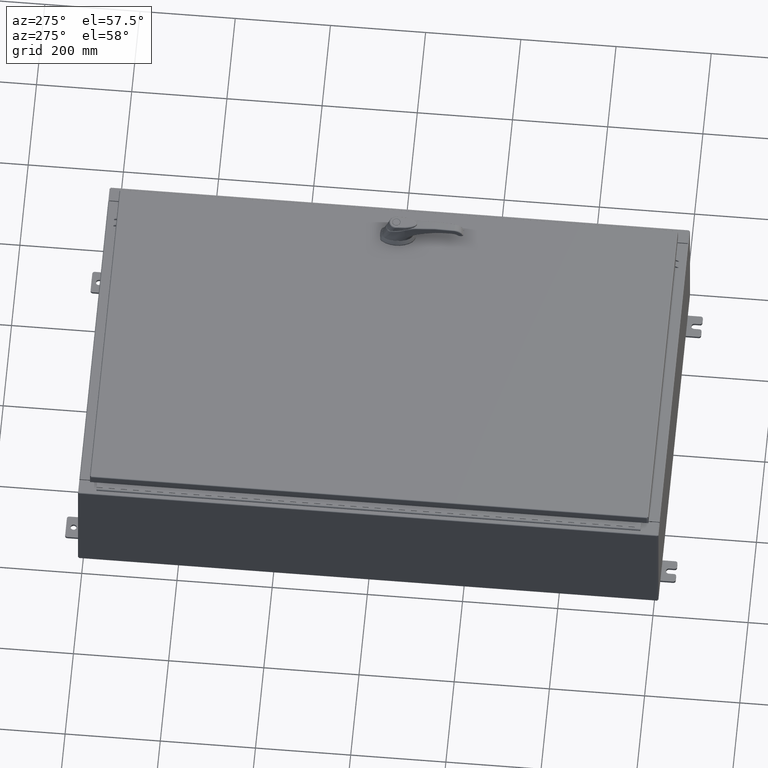
[diagram: clean part render]
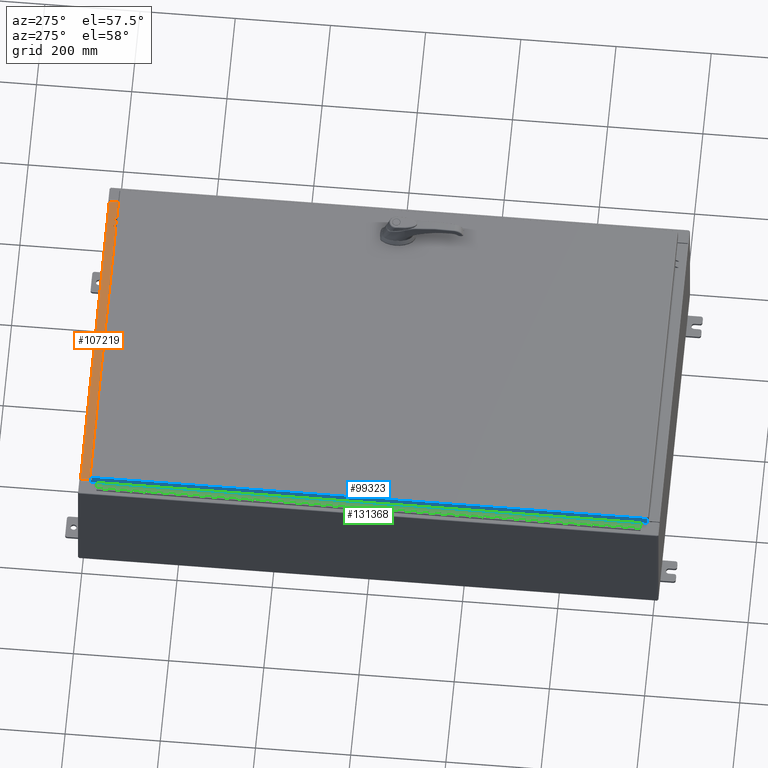
[diagram: same view with three faces highlighted in distinct colors, each labeled with its STEP entity id]
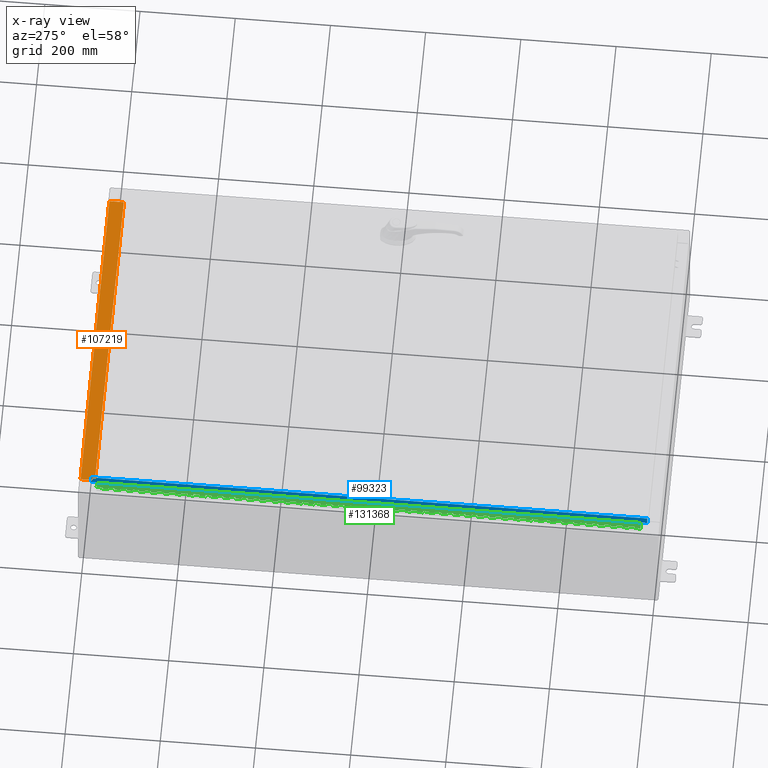
[diagram: x-ray of the same camera — body ghosted, the three highlighted faces saturated]
A machine part, auxiliary view with three faces highlighted in distinct colors.
The next image is the same camera in x-ray (body ghosted, the three faces saturated) — at least one of them is partly hidden behind the body in this view.
Their STEP definitions:

[orange] entity #107219 — the highlighted planar face has unit normal (0, 0, 1).
#2720 = EDGE_CURVE ( 'NONE', #92779, #91206, #19459, .T. ) ;
#5119 = DIRECTION ( 'NONE',  ( 0.0000000000000000000, -1.000000000000000000, 3.566381192773190000E-015 ) ) ;
#9276 = EDGE_CURVE ( 'NONE', #91206, #125586, #18242, .T. ) ;
#14869 = CARTESIAN_POINT ( 'NONE',  ( 3.513669507588167300E-018, -0.08770000000000081900, 5.000000000000000000 ) ) ;
#18242 = LINE ( 'NONE', #22523, #124405 ) ;
#19459 = LINE ( 'NONE', #88093, #98191 ) ;
#22523 = CARTESIAN_POINT ( 'NONE',  ( 13.63719999999999800, -1.287299999999999900, 5.000000000000002700 ) ) ;
#25313 = CARTESIAN_POINT ( 'NONE',  ( 0.0000000000000000000, 1.782631094477737600E-014, 5.000000000000000000 ) ) ;
#29588 = DIRECTION ( 'NONE',  ( -1.000000000000000000, 0.0000000000000000000, 0.0000000000000000000 ) ) ;
#34190 = DIRECTION ( 'NONE',  ( -0.0000000000000000000, -1.000000000000000000, 3.566381192773190000E-015 ) ) ;
#35552 = DIRECTION ( 'NONE',  ( -1.000000000000000000, -4.006464660875052000E-017, 1.428858021605520200E-031 ) ) ;
#37003 = EDGE_CURVE ( 'NONE', #92779, #114564, #45389, .T. ) ;
#38078 = ORIENTED_EDGE ( 'NONE', *, *, #9276, .F. ) ;
#42198 = CARTESIAN_POINT ( 'NONE',  ( 13.63719999999999800, -0.08770000000000047200, 5.000000000000000000 ) ) ;
#44836 = FACE_OUTER_BOUND ( 'NONE', #81572, .T. ) ;
#45389 = LINE ( 'NONE', #14869, #96793 ) ;
#50714 = ORIENTED_EDGE ( 'NONE', *, *, #2720, .F. ) ;
#51325 = ORIENTED_EDGE ( 'NONE', *, *, #74418, .F. ) ;
#53323 = AXIS2_PLACEMENT_3D ( 'NONE', #25313, #66512, #5119 ) ;
#59009 = CARTESIAN_POINT ( 'NONE',  ( -13.63720000000000400, -0.08770000000000081900, 5.000000000000000000 ) ) ;
#64846 = CARTESIAN_POINT ( 'NONE',  ( -13.63720000000000400, -1.287299999999999200, 5.000000000000004400 ) ) ;
#66512 = DIRECTION ( 'NONE',  ( 0.0000000000000000000, 3.566381192773190000E-015, 1.000000000000000000 ) ) ;
#74418 = EDGE_CURVE ( 'NONE', #125586, #114564, #75725, .T. ) ;
#75725 = LINE ( 'NONE', #123529, #78929 ) ;
#78929 = VECTOR ( 'NONE', #132088, 39.37007874015748100 ) ;
#81572 = EDGE_LOOP ( 'NONE', ( #51325, #38078, #50714, #118845 ) ) ;
#88093 = CARTESIAN_POINT ( 'NONE',  ( 13.63719999999999800, -1.300299999999999800, 5.000000000000004400 ) ) ;
#91206 = VERTEX_POINT ( 'NONE', #102910 ) ;
#92779 = VERTEX_POINT ( 'NONE', #42198 ) ;
#96793 = VECTOR ( 'NONE', #35552, 39.37007874015748100 ) ;
#98191 = VECTOR ( 'NONE', #34190, 39.37007874015748100 ) ;
#102910 = CARTESIAN_POINT ( 'NONE',  ( 13.63719999999999800, -1.287299999999999900, 5.000000000000004400 ) ) ;
#107219 = ADVANCED_FACE ( 'NONE', ( #44836 ), #128245, .T. ) ;
#114564 = VERTEX_POINT ( 'NONE', #59009 ) ;
#118845 = ORIENTED_EDGE ( 'NONE', *, *, #37003, .T. ) ;
#123529 = CARTESIAN_POINT ( 'NONE',  ( -13.63720000000000400, -0.07469999999999973900, 5.000000000000000000 ) ) ;
#124405 = VECTOR ( 'NONE', #29588, 39.37007874015748100 ) ;
#125586 = VERTEX_POINT ( 'NONE', #64846 ) ;
#128245 = PLANE ( 'NONE',  #53323 ) ;
#132088 = DIRECTION ( 'NONE',  ( -0.0000000000000000000, 1.000000000000000000, -3.566381192773190000E-015 ) ) ;

[blue] entity #99323 — the highlighted planar face has unit normal (1, 0, -0).
#8476 = VECTOR ( 'NONE', #18572, 39.37007874015748100 ) ;
#15516 = DIRECTION ( 'NONE',  ( -3.034122441942816500E-015, 0.0000000000000000000, -1.000000000000000000 ) ) ;
#17039 = DIRECTION ( 'NONE',  ( 3.678869116736826000E-031, -1.000000000000000000, -1.084461527917214800E-045 ) ) ;
#18572 = DIRECTION ( 'NONE',  ( -3.034122441942816500E-015, 6.982962677686267500E-015, -1.000000000000000000 ) ) ;
#21440 = EDGE_CURVE ( 'NONE', #101837, #105928, #126338, .T. ) ;
#25555 = CARTESIAN_POINT ( 'NONE',  ( -14.07799999999999800, -23.00515786437627200, -0.08770000000000007000 ) ) ;
#26726 = VERTEX_POINT ( 'NONE', #52850 ) ;
#28722 = EDGE_CURVE ( 'NONE', #26726, #45804, #102696, .T. ) ;
#29405 = LINE ( 'NONE', #68764, #77530 ) ;
#33880 = ORIENTED_EDGE ( 'NONE', *, *, #28722, .F. ) ;
#41328 = CARTESIAN_POINT ( 'NONE',  ( -14.07799999999999900, -23.09400000000000100, -0.7949999999999997100 ) ) ;
#45804 = VERTEX_POINT ( 'NONE', #62464 ) ;
#47511 = VECTOR ( 'NONE', #17039, 39.37007874015748100 ) ;
#52850 = CARTESIAN_POINT ( 'NONE',  ( -14.07799999999999900, -23.00515786437626900, -0.7949999999999996000 ) ) ;
#56316 = PLANE ( 'NONE',  #131954 ) ;
#59044 = EDGE_LOOP ( 'NONE', ( #90554, #121325, #33880, #77474 ) ) ;
#62464 = CARTESIAN_POINT ( 'NONE',  ( -14.07799999999999900, 23.00515786437627600, -0.7949999999999941600 ) ) ;
#66627 = CARTESIAN_POINT ( 'NONE',  ( -14.07799999999999800, -5.179111942542102700E-030, 4.297518939368254200E-014 ) ) ;
#68764 = CARTESIAN_POINT ( 'NONE',  ( -14.07799999999999800, 23.00515786437627200, 2.036193481549027800E-013 ) ) ;
#73235 = EDGE_CURVE ( 'NONE', #101837, #45804, #29405, .T. ) ;
#75297 = VECTOR ( 'NONE', #113228, 39.37007874015748100 ) ;
#76962 = DIRECTION ( 'NONE',  ( 1.000000000000000000, 3.678869116736826000E-031, -3.034122441942816500E-015 ) ) ;
#77474 = ORIENTED_EDGE ( 'NONE', *, *, #81144, .F. ) ;
#77530 = VECTOR ( 'NONE', #130503, 39.37007874015748100 ) ;
#78448 = CARTESIAN_POINT ( 'NONE',  ( -14.07799999999999800, -23.09400000000000100, -0.08770000000000004200 ) ) ;
#81144 = EDGE_CURVE ( 'NONE', #105928, #26726, #114584, .T. ) ;
#90554 = ORIENTED_EDGE ( 'NONE', *, *, #21440, .F. ) ;
#99323 = ADVANCED_FACE ( 'NONE', ( #128059 ), #56316, .F. ) ;
#100726 = CARTESIAN_POINT ( 'NONE',  ( -14.07799999999999800, -23.00515786437627200, -0.07469999999999976700 ) ) ;
#101837 = VERTEX_POINT ( 'NONE', #115032 ) ;
#102696 = LINE ( 'NONE', #41328, #75297 ) ;
#105928 = VERTEX_POINT ( 'NONE', #25555 ) ;
#113228 = DIRECTION ( 'NONE',  ( -0.0000000000000000000, 1.000000000000000000, 1.212498568245375000E-016 ) ) ;
#114584 = LINE ( 'NONE', #100726, #8476 ) ;
#115032 = CARTESIAN_POINT ( 'NONE',  ( -14.07799999999999800, 23.00515786437627200, -0.08770000000000004200 ) ) ;
#121325 = ORIENTED_EDGE ( 'NONE', *, *, #73235, .T. ) ;
#126338 = LINE ( 'NONE', #78448, #47511 ) ;
#128059 = FACE_OUTER_BOUND ( 'NONE', #59044, .T. ) ;
#130503 = DIRECTION ( 'NONE',  ( -3.034122441942816500E-015, 6.982962677686267500E-015, -1.000000000000000000 ) ) ;
#131954 = AXIS2_PLACEMENT_3D ( 'NONE', #66627, #76962, #15516 ) ;

[green] entity #131368 — the highlighted planar face has unit normal (-0, -0, 1).
#25 = VECTOR ( 'NONE', #36648, 39.37007874015748100 ) ;
#54 = LINE ( 'NONE', #48396, #78684 ) ;
#134 = LINE ( 'NONE', #5920, #51479 ) ;
#218 = VECTOR ( 'NONE', #41162, 39.37007874015748100 ) ;
#232 = CARTESIAN_POINT ( 'NONE',  ( -0.6869999999999978300, 0.6754999999999996600, -45.00000000000000000 ) ) ;
#262 = LINE ( 'NONE', #75154, #75667 ) ;
#291 = EDGE_CURVE ( 'NONE', #28598, #92547, #10063, .T. ) ;
#439 = DIRECTION ( 'NONE',  ( -3.389037039080723100E-015, -1.000000000000000000, 0.0000000000000000000 ) ) ;
#523 = LINE ( 'NONE', #612, #27811 ) ;
#612 = CARTESIAN_POINT ( 'NONE',  ( -0.6869999999999982800, 0.5504999999999997700, -25.50000000000000400 ) ) ;
#646 = LINE ( 'NONE', #45578, #79261 ) ;
#687 = DIRECTION ( 'NONE',  ( 3.389037039080723100E-015, 1.000000000000000000, -0.0000000000000000000 ) ) ;
#753 = CARTESIAN_POINT ( 'NONE',  ( -0.6869999999999973900, 0.8004999999999995500, -23.99999999999999600 ) ) ;
#794 = CARTESIAN_POINT ( 'NONE',  ( -0.6869999999999982800, 0.5504999999999997700, -35.00000000000000000 ) ) ;
#901 = ORIENTED_EDGE ( 'NONE', *, *, #127007, .T. ) ;
#908 = EDGE_CURVE ( 'NONE', #3315, #86747, #117891, .T. ) ;
#1015 = CARTESIAN_POINT ( 'NONE',  ( -0.6869999999999982800, 0.5504999999999997700, -39.00000000000000000 ) ) ;
#1125 = VERTEX_POINT ( 'NONE', #47296 ) ;
#1233 = VERTEX_POINT ( 'NONE', #96938 ) ;
#1290 = CARTESIAN_POINT ( 'NONE',  ( -0.6869999999999978300, 0.6754999999999996600, -35.00000000000000000 ) ) ;
#1625 = ORIENTED_EDGE ( 'NONE', *, *, #54645, .T. ) ;
#1800 = VERTEX_POINT ( 'NONE', #37379 ) ;
#1868 = CARTESIAN_POINT ( 'NONE',  ( -0.6869999999999982800, 0.5504999999999997700, -40.50000000000000000 ) ) ;
#1900 = EDGE_CURVE ( 'NONE', #115647, #68319, #77394, .T. ) ;
#1904 = DIRECTION ( 'NONE',  ( 1.000000000000000000, -3.369016658928398200E-015, 0.0000000000000000000 ) ) ;
#2028 = EDGE_CURVE ( 'NONE', #14083, #85553, #70931, .T. ) ;
#2099 = CARTESIAN_POINT ( 'NONE',  ( -0.6869999999999982800, 0.5504999999999997700, -4.500000000000000000 ) ) ;
#2167 = VECTOR ( 'NONE', #70188, 39.37007874015748100 ) ;
#2168 = ORIENTED_EDGE ( 'NONE', *, *, #17314, .F. ) ;
#2532 = LINE ( 'NONE', #33024, #108578 ) ;
#2602 = VERTEX_POINT ( 'NONE', #67559 ) ;
#2635 = CARTESIAN_POINT ( 'NONE',  ( -0.6869999999999982800, 0.5504999999999997700, -28.00000000000000000 ) ) ;
#2636 = DIRECTION ( 'NONE',  ( 0.0000000000000000000, 0.0000000000000000000, 1.000000000000000000 ) ) ;
#2641 = VERTEX_POINT ( 'NONE', #76569 ) ;
#2689 = DIRECTION ( 'NONE',  ( -3.389037039080723100E-015, -1.000000000000000000, 0.0000000000000000000 ) ) ;
#2806 = CARTESIAN_POINT ( 'NONE',  ( -0.6869999999999978300, 0.6754999999999996600, -28.00000000000000000 ) ) ;
#2834 = EDGE_CURVE ( 'NONE', #82591, #65679, #67591, .T. ) ;
#2948 = LINE ( 'NONE', #72052, #30220 ) ;
#2969 = ORIENTED_EDGE ( 'NONE', *, *, #62016, .F. ) ;
#3067 = ORIENTED_EDGE ( 'NONE', *, *, #112562, .T. ) ;
#3140 = CARTESIAN_POINT ( 'NONE',  ( -0.6869999999999978300, 0.6754999999999996600, -24.99999999999999600 ) ) ;
#3202 = CARTESIAN_POINT ( 'NONE',  ( -0.6869999999999978300, 0.6754999999999996600, -39.00000000000000000 ) ) ;
#3228 = VECTOR ( 'NONE', #40984, 39.37007874015748100 ) ;
#3233 = VECTOR ( 'NONE', #77011, 39.37007874015748100 ) ;
#3285 = CARTESIAN_POINT ( 'NONE',  ( -0.6869999999999978300, 0.6754999999999996600, -17.00000000000000000 ) ) ;
#3295 = CARTESIAN_POINT ( 'NONE',  ( -0.6869999999999982800, 0.5504999999999997700, -10.00000000000000000 ) ) ;
#3315 = VERTEX_POINT ( 'NONE', #81850 ) ;
#3482 = CARTESIAN_POINT ( 'NONE',  ( -0.6869999999999978300, 0.6754999999999996600, -45.00000000000000000 ) ) ;
#3560 = CARTESIAN_POINT ( 'NONE',  ( -0.6869999999999982800, 0.5504999999999997700, -17.50000000000000000 ) ) ;
#3579 = EDGE_CURVE ( 'NONE', #121121, #83011, #67467, .T. ) ;
#3669 = CARTESIAN_POINT ( 'NONE',  ( -0.6869999999999982800, 0.5504999999999997700, -10.50000000000000000 ) ) ;
#3717 = ORIENTED_EDGE ( 'NONE', *, *, #39743, .F. ) ;
#3740 = ORIENTED_EDGE ( 'NONE', *, *, #99750, .F. ) ;
#3861 = LINE ( 'NONE', #123990, #82449 ) ;
#3911 = CARTESIAN_POINT ( 'NONE',  ( -0.6869999999999978300, 0.6754999999999996600, -37.50000000000000000 ) ) ;
#3939 = VECTOR ( 'NONE', #109801, 39.37007874015748100 ) ;
#4007 = VERTEX_POINT ( 'NONE', #53950 ) ;
#4204 = CARTESIAN_POINT ( 'NONE',  ( -0.6869999999999978300, 0.6754999999999996600, -27.00000000000000000 ) ) ;
#4363 = CARTESIAN_POINT ( 'NONE',  ( -0.6869999999999982800, 0.5504999999999997700, -33.50000000000000000 ) ) ;
#4530 = CARTESIAN_POINT ( 'NONE',  ( -0.6869999999999978300, 0.6754999999999996600, -45.00000000000000000 ) ) ;
#4616 = EDGE_CURVE ( 'NONE', #127761, #67409, #102723, .T. ) ;
#4856 = DIRECTION ( 'NONE',  ( 3.389037039080723100E-015, 1.000000000000000000, -0.0000000000000000000 ) ) ;
#5163 = ORIENTED_EDGE ( 'NONE', *, *, #110774, .F. ) ;
#5172 = EDGE_CURVE ( 'NONE', #24076, #28437, #76893, .T. ) ;
#5213 = CARTESIAN_POINT ( 'NONE',  ( -0.6869999999999978300, 0.6754999999999996600, -45.00000000000000000 ) ) ;
#5256 = CARTESIAN_POINT ( 'NONE',  ( -0.6869999999999973900, 0.8004999999999995500, -23.50000000000000000 ) ) ;
#5302 = ORIENTED_EDGE ( 'NONE', *, *, #14424, .F. ) ;
#5458 = ORIENTED_EDGE ( 'NONE', *, *, #106409, .T. ) ;
#5505 = VERTEX_POINT ( 'NONE', #115226 ) ;
#5507 = VERTEX_POINT ( 'NONE', #127277 ) ;
#5508 = EDGE_CURVE ( 'NONE', #29023, #96444, #71949, .T. ) ;
#5539 = ORIENTED_EDGE ( 'NONE', *, *, #80138, .F. ) ;
#5817 = EDGE_CURVE ( 'NONE', #105353, #123642, #104117, .T. ) ;
#5920 = CARTESIAN_POINT ( 'NONE',  ( -0.6869999999999973900, 0.8004999999999995500, -19.50000000000000000 ) ) ;
#5987 = CARTESIAN_POINT ( 'NONE',  ( -0.6869999999999973900, 0.8004999999999995500, -24.99999999999999600 ) ) ;
#6206 = DIRECTION ( 'NONE',  ( 0.0000000000000000000, -0.0000000000000000000, -1.000000000000000000 ) ) ;
#6258 = ORIENTED_EDGE ( 'NONE', *, *, #111228, .F. ) ;
#6349 = CARTESIAN_POINT ( 'NONE',  ( -0.6869999999999982800, 0.5504999999999997700, -29.50000000000000000 ) ) ;
#6630 = ORIENTED_EDGE ( 'NONE', *, *, #4616, .F. ) ;
#6728 = EDGE_CURVE ( 'NONE', #35289, #111130, #18802, .T. ) ;
#6769 = EDGE_CURVE ( 'NONE', #46365, #42402, #70164, .T. ) ;
#6814 = ORIENTED_EDGE ( 'NONE', *, *, #99330, .F. ) ;
#6815 = VECTOR ( 'NONE', #45898, 39.37007874015748100 ) ;
#6880 = DIRECTION ( 'NONE',  ( -3.389037039080723100E-015, -1.000000000000000000, 0.0000000000000000000 ) ) ;
#6958 = VECTOR ( 'NONE', #40560, 39.37007874015748100 ) ;
#7110 = ORIENTED_EDGE ( 'NONE', *, *, #17573, .F. ) ;
#7146 = VERTEX_POINT ( 'NONE', #67846 ) ;
#7181 = DIRECTION ( 'NONE',  ( 0.0000000000000000000, -0.0000000000000000000, -1.000000000000000000 ) ) ;
#7359 = CARTESIAN_POINT ( 'NONE',  ( -0.6869999999999978300, 0.6754999999999996600, 0.0000000000000000000 ) ) ;
#7416 = ORIENTED_EDGE ( 'NONE', *, *, #67404, .T. ) ;
#7424 = CARTESIAN_POINT ( 'NONE',  ( -0.6869999999999982800, 0.5504999999999997700, -13.50000000000000000 ) ) ;
#7646 = DIRECTION ( 'NONE',  ( -3.389037039080723100E-015, -1.000000000000000000, 0.0000000000000000000 ) ) ;
#7748 = EDGE_CURVE ( 'NONE', #17689, #16596, #8834, .T. ) ;
#7960 = LINE ( 'NONE', #121637, #62550 ) ;
#8209 = VERTEX_POINT ( 'NONE', #55469 ) ;
#8290 = LINE ( 'NONE', #58540, #111166 ) ;
#8453 = LINE ( 'NONE', #39060, #114555 ) ;
#8634 = CARTESIAN_POINT ( 'NONE',  ( -0.6869999999999982800, 0.5504999999999997700, -32.00000000000000000 ) ) ;
#8689 = LINE ( 'NONE', #59865, #60046 ) ;
#8702 = CARTESIAN_POINT ( 'NONE',  ( -0.6869999999999978300, 0.6754999999999996600, -41.00000000000000700 ) ) ;
#8834 = LINE ( 'NONE', #113103, #114934 ) ;
#8838 = CARTESIAN_POINT ( 'NONE',  ( -0.6869999999999973900, 0.8004999999999995500, -24.50000000000000000 ) ) ;
#8864 = CARTESIAN_POINT ( 'NONE',  ( -0.6869999999999978300, 0.6754999999999996600, -45.00000000000000000 ) ) ;
#9036 = LINE ( 'NONE', #61758, #60393 ) ;
#9101 = EDGE_CURVE ( 'NONE', #9460, #76242, #3861, .T. ) ;
#9120 = EDGE_CURVE ( 'NONE', #123291, #13057, #109898, .T. ) ;
#9197 = VECTOR ( 'NONE', #40978, 39.37007874015748100 ) ;
#9207 = CARTESIAN_POINT ( 'NONE',  ( -0.6869999999999973900, 0.8004999999999995500, -38.50000000000000000 ) ) ;
#9230 = LINE ( 'NONE', #232, #115331 ) ;
#9233 = EDGE_CURVE ( 'NONE', #71970, #128277, #79232, .T. ) ;
#9290 = LINE ( 'NONE', #41079, #115397 ) ;
#9428 = EDGE_CURVE ( 'NONE', #5505, #19521, #63149, .T. ) ;
#9456 = ORIENTED_EDGE ( 'NONE', *, *, #15195, .T. ) ;
#9460 = VERTEX_POINT ( 'NONE', #127645 ) ;
#9548 = VECTOR ( 'NONE', #99293, 39.37007874015748100 ) ;
#9742 = LINE ( 'NONE', #51934, #115826 ) ;
#9743 = VECTOR ( 'NONE', #121643, 39.37007874015748100 ) ;
#9827 = VECTOR ( 'NONE', #41356, 39.37007874015748100 ) ;
#9930 = EDGE_CURVE ( 'NONE', #85870, #3315, #79104, .T. ) ;
#9966 = LINE ( 'NONE', #17484, #88647 ) ;
#10063 = LINE ( 'NONE', #4530, #53573 ) ;
#10704 = LINE ( 'NONE', #77950, #34825 ) ;
#10714 = CARTESIAN_POINT ( 'NONE',  ( -0.6869999999999978300, 0.6754999999999996600, -45.00000000000000000 ) ) ;
#10732 = LINE ( 'NONE', #97443, #62106 ) ;
#10874 = EDGE_CURVE ( 'NONE', #26409, #125225, #96678, .T. ) ;
#11000 = VERTEX_POINT ( 'NONE', #38651 ) ;
#11083 = DIRECTION ( 'NONE',  ( 0.0000000000000000000, 0.0000000000000000000, 1.000000000000000000 ) ) ;
#11098 = ORIENTED_EDGE ( 'NONE', *, *, #56673, .F. ) ;
#11181 = EDGE_CURVE ( 'NONE', #77954, #122137, #111195, .T. ) ;
#11335 = CARTESIAN_POINT ( 'NONE',  ( -0.6869999999999978300, 0.6754999999999996600, -4.000000000000000000 ) ) ;
#11340 = VERTEX_POINT ( 'NONE', #96008 ) ;
#11581 = VECTOR ( 'NONE', #439, 39.37007874015748100 ) ;
#11676 = DIRECTION ( 'NONE',  ( 0.0000000000000000000, -0.0000000000000000000, -1.000000000000000000 ) ) ;
#11725 = CARTESIAN_POINT ( 'NONE',  ( -0.6870000000000022800, -0.6245000000000003900, -45.00000000000000000 ) ) ;
#11733 = CARTESIAN_POINT ( 'NONE',  ( -0.6869999999999982800, 0.5504999999999997700, -38.00000000000000000 ) ) ;
#11737 = VECTOR ( 'NONE', #71543, 39.37007874015748100 ) ;
#11770 = VECTOR ( 'NONE', #115314, 39.37007874015748100 ) ;
#11779 = VECTOR ( 'NONE', #109723, 39.37007874015748100 ) ;
#12018 = CARTESIAN_POINT ( 'NONE',  ( -0.6869999999999982800, 0.5504999999999997700, -43.00000000000000700 ) ) ;
#12226 = CARTESIAN_POINT ( 'NONE',  ( -0.6869999999999973900, 0.8004999999999995500, -26.00000000000000000 ) ) ;
#12425 = VERTEX_POINT ( 'NONE', #131497 ) ;
#12484 = ORIENTED_EDGE ( 'NONE', *, *, #5172, .F. ) ;
#12521 = VERTEX_POINT ( 'NONE', #88748 ) ;
#12586 = CARTESIAN_POINT ( 'NONE',  ( -0.6869999999999978300, 0.6754999999999996600, -29.50000000000000000 ) ) ;
#12736 = DIRECTION ( 'NONE',  ( 0.0000000000000000000, 0.0000000000000000000, 1.000000000000000000 ) ) ;
#12752 = EDGE_CURVE ( 'NONE', #73504, #27130, #122217, .T. ) ;
#12829 = DIRECTION ( 'NONE',  ( 0.0000000000000000000, 0.0000000000000000000, 1.000000000000000000 ) ) ;
#12904 = VECTOR ( 'NONE', #65350, 39.37007874015748100 ) ;
#12992 = CARTESIAN_POINT ( 'NONE',  ( -0.6869999999999973900, 0.8004999999999995500, -17.00000000000000000 ) ) ;
#13057 = VERTEX_POINT ( 'NONE', #120019 ) ;
#13253 = CARTESIAN_POINT ( 'NONE',  ( -0.6869999999999982800, 0.5504999999999997700, -22.50000000000000000 ) ) ;
#13313 = VERTEX_POINT ( 'NONE', #83810 ) ;
#13367 = VERTEX_POINT ( 'NONE', #53183 ) ;
#13424 = ORIENTED_EDGE ( 'NONE', *, *, #40740, .F. ) ;
#13473 = ORIENTED_EDGE ( 'NONE', *, *, #27381, .F. ) ;
#13606 = LINE ( 'NONE', #100984, #89107 ) ;
#13622 = VERTEX_POINT ( 'NONE', #86480 ) ;
#13865 = VECTOR ( 'NONE', #89369, 39.37007874015748100 ) ;
#13993 = CARTESIAN_POINT ( 'NONE',  ( -0.6869999999999978300, 0.6754999999999996600, -11.50000000000000000 ) ) ;
#14070 = CARTESIAN_POINT ( 'NONE',  ( -0.6869999999999978300, 0.6754999999999996600, -23.99999999999999600 ) ) ;
#14083 = VERTEX_POINT ( 'NONE', #40213 ) ;
#14090 = LINE ( 'NONE', #29464, #41422 ) ;
#14274 = DIRECTION ( 'NONE',  ( 0.0000000000000000000, 0.0000000000000000000, 1.000000000000000000 ) ) ;
#14316 = CARTESIAN_POINT ( 'NONE',  ( -0.6869999999999982800, 0.5504999999999997700, -37.50000000000000000 ) ) ;
#14318 = VERTEX_POINT ( 'NONE', #26102 ) ;
#14331 = CARTESIAN_POINT ( 'NONE',  ( -0.6869999999999978300, 0.6754999999999996600, -19.00000000000000000 ) ) ;
#14424 = EDGE_CURVE ( 'NONE', #29614, #106581, #2948, .T. ) ;
#14436 = DIRECTION ( 'NONE',  ( -3.389037039080723100E-015, -1.000000000000000000, 0.0000000000000000000 ) ) ;
#14465 = CARTESIAN_POINT ( 'NONE',  ( -0.6869999999999982800, 0.5504999999999997700, -13.50000000000000000 ) ) ;
#14502 = CARTESIAN_POINT ( 'NONE',  ( -0.6869999999999978300, 0.6754999999999996600, -15.50000000000000000 ) ) ;
#14593 = VECTOR ( 'NONE', #24173, 39.37007874015748100 ) ;
#14612 = VECTOR ( 'NONE', #73213, 39.37007874015748100 ) ;
#15057 = LINE ( 'NONE', #98992, #121209 ) ;
#15089 = CARTESIAN_POINT ( 'NONE',  ( -0.6869999999999978300, 0.6754999999999996600, -45.00000000000000000 ) ) ;
#15195 = EDGE_CURVE ( 'NONE', #79506, #42980, #9230, .T. ) ;
#15262 = LINE ( 'NONE', #59039, #121413 ) ;
#15305 = VERTEX_POINT ( 'NONE', #17443 ) ;
#15402 = EDGE_CURVE ( 'NONE', #125519, #16936, #71745, .T. ) ;
#15426 = EDGE_CURVE ( 'NONE', #53521, #24076, #99148, .T. ) ;
#15468 = DIRECTION ( 'NONE',  ( 3.369016658928398200E-015, 1.000000000000000000, 0.0000000000000000000 ) ) ;
#15496 = DIRECTION ( 'NONE',  ( 0.0000000000000000000, -0.0000000000000000000, -1.000000000000000000 ) ) ;
#15583 = VECTOR ( 'NONE', #15679, 39.37007874015748100 ) ;
#15627 = VECTOR ( 'NONE', #103765, 39.37007874015748100 ) ;
#15679 = DIRECTION ( 'NONE',  ( 0.0000000000000000000, -0.0000000000000000000, -1.000000000000000000 ) ) ;
#15712 = DIRECTION ( 'NONE',  ( 3.389037039080723100E-015, 1.000000000000000000, -0.0000000000000000000 ) ) ;
#15807 = ORIENTED_EDGE ( 'NONE', *, *, #105056, .F. ) ;
#15817 = CARTESIAN_POINT ( 'NONE',  ( -0.6869999999999973900, 0.8004999999999995500, -37.00000000000000000 ) ) ;
#16228 = CARTESIAN_POINT ( 'NONE',  ( -0.6869999999999973900, 0.8004999999999995500, -26.50000000000000400 ) ) ;
#16232 = LINE ( 'NONE', #129122, #67577 ) ;
#16476 = CARTESIAN_POINT ( 'NONE',  ( -0.6869999999999982800, 0.5504999999999997700, -26.00000000000000000 ) ) ;
#16596 = VERTEX_POINT ( 'NONE', #115074 ) ;
#16637 = VERTEX_POINT ( 'NONE', #12586 ) ;
#16754 = EDGE_CURVE ( 'NONE', #11340, #78059, #55711, .T. ) ;
#16913 = VERTEX_POINT ( 'NONE', #68359 ) ;
#16936 = VERTEX_POINT ( 'NONE', #61141 ) ;
#16942 = ORIENTED_EDGE ( 'NONE', *, *, #32108, .F. ) ;
#17064 = VERTEX_POINT ( 'NONE', #13993 ) ;
#17135 = VECTOR ( 'NONE', #67391, 39.37007874015748100 ) ;
#17191 = EDGE_CURVE ( 'NONE', #41605, #32008, #129752, .T. ) ;
#17314 = EDGE_CURVE ( 'NONE', #1800, #11340, #68474, .T. ) ;
#17329 = EDGE_CURVE ( 'NONE', #102600, #86923, #44386, .T. ) ;
#17388 = EDGE_CURVE ( 'NONE', #85870, #36923, #34796, .T. ) ;
#17405 = CARTESIAN_POINT ( 'NONE',  ( -0.6869999999999978300, 0.6754999999999996600, -23.50000000000000000 ) ) ;
#17443 = CARTESIAN_POINT ( 'NONE',  ( -0.6869999999999978300, 0.6754999999999996600, -36.00000000000000000 ) ) ;
#17473 = CARTESIAN_POINT ( 'NONE',  ( -0.6869999999999973900, 0.8004999999999995500, -16.50000000000000000 ) ) ;
#17484 = CARTESIAN_POINT ( 'NONE',  ( -0.6869999999999982800, 0.5504999999999997700, -3.500000000000000000 ) ) ;
#17552 = CARTESIAN_POINT ( 'NONE',  ( -0.6869999999999973900, 0.8004999999999995500, -41.00000000000000700 ) ) ;
#17554 = ORIENTED_EDGE ( 'NONE', *, *, #96228, .F. ) ;
#17563 = CARTESIAN_POINT ( 'NONE',  ( -0.6869999999999973900, 0.8004999999999995500, -16.00000000000000000 ) ) ;
#17573 = EDGE_CURVE ( 'NONE', #95811, #117645, #100585, .T. ) ;
#17689 = VERTEX_POINT ( 'NONE', #17405 ) ;
#17694 = ORIENTED_EDGE ( 'NONE', *, *, #26222, .F. ) ;
#17902 = DIRECTION ( 'NONE',  ( 3.389037039080723100E-015, 1.000000000000000000, -0.0000000000000000000 ) ) ;
#17992 = CARTESIAN_POINT ( 'NONE',  ( -0.6869999999999973900, 0.8004999999999995500, -32.50000000000000000 ) ) ;
#18013 = CARTESIAN_POINT ( 'NONE',  ( -0.6869999999999978300, 0.6754999999999996600, -30.50000000000000400 ) ) ;
#18188 = CARTESIAN_POINT ( 'NONE',  ( -0.6869999999999982800, 0.5504999999999997700, -4.000000000000000000 ) ) ;
#18715 = EDGE_CURVE ( 'NONE', #131347, #36747, #113909, .T. ) ;
#18765 = LINE ( 'NONE', #66791, #15583 ) ;
#18802 = LINE ( 'NONE', #27078, #97556 ) ;
#18951 = CARTESIAN_POINT ( 'NONE',  ( -0.6869999999999982800, 0.5504999999999997700, -45.00000000000000000 ) ) ;
#18972 = LINE ( 'NONE', #53770, #70309 ) ;
#19053 = EDGE_CURVE ( 'NONE', #59104, #126633, #121961, .T. ) ;
#19521 = VERTEX_POINT ( 'NONE', #31204 ) ;
#19650 = VECTOR ( 'NONE', #17902, 39.37007874015748100 ) ;
#19668 = VECTOR ( 'NONE', #119283, 39.37007874015748100 ) ;
#19782 = ORIENTED_EDGE ( 'NONE', *, *, #17329, .F. ) ;
#19900 = CARTESIAN_POINT ( 'NONE',  ( -0.6869999999999978300, 0.6754999999999996600, -32.00000000000000000 ) ) ;
#20275 = ORIENTED_EDGE ( 'NONE', *, *, #80160, .F. ) ;
#20290 = CARTESIAN_POINT ( 'NONE',  ( -0.6869999999999973900, 0.8004999999999995500, -33.50000000000000000 ) ) ;
#20333 = VECTOR ( 'NONE', #36887, 39.37007874015748100 ) ;
#20501 = AXIS2_PLACEMENT_3D ( 'NONE', #11725, #1904, #73590 ) ;
#20663 = LINE ( 'NONE', #128154, #123629 ) ;
#20673 = CARTESIAN_POINT ( 'NONE',  ( -0.6869999999999978300, 0.6754999999999996600, -5.500000000000000000 ) ) ;
#20794 = VERTEX_POINT ( 'NONE', #115139 ) ;
#21045 = EDGE_CURVE ( 'NONE', #116293, #75692, #73174, .T. ) ;
#21122 = VERTEX_POINT ( 'NONE', #18013 ) ;
#21224 = VECTOR ( 'NONE', #31101, 39.37007874015748100 ) ;
#21363 = VECTOR ( 'NONE', #81034, 39.37007874015748100 ) ;
#21500 = CARTESIAN_POINT ( 'NONE',  ( -0.6869999999999978300, 0.6754999999999996600, -45.00000000000000000 ) ) ;
#21564 = VECTOR ( 'NONE', #120228, 39.37007874015748100 ) ;
#21618 = LINE ( 'NONE', #89532, #97096 ) ;
#21624 = DIRECTION ( 'NONE',  ( 3.389037039080723100E-015, 1.000000000000000000, -0.0000000000000000000 ) ) ;
#21700 = LINE ( 'NONE', #44016, #69799 ) ;
#21784 = CARTESIAN_POINT ( 'NONE',  ( -0.6869999999999982800, 0.5504999999999997700, -41.49999999999999300 ) ) ;
#21786 = VECTOR ( 'NONE', #59715, 39.37007874015748100 ) ;
#22418 = VECTOR ( 'NONE', #56630, 39.37007874015748100 ) ;
#22436 = EDGE_CURVE ( 'NONE', #72060, #20794, #24862, .T. ) ;
#22521 = ORIENTED_EDGE ( 'NONE', *, *, #113143, .F. ) ;
#22588 = DIRECTION ( 'NONE',  ( 3.389037039080723100E-015, 1.000000000000000000, -0.0000000000000000000 ) ) ;
#22791 = VERTEX_POINT ( 'NONE', #86988 ) ;
#22805 = ORIENTED_EDGE ( 'NONE', *, *, #96574, .F. ) ;
#22835 = VECTOR ( 'NONE', #105119, 39.37007874015748100 ) ;
#22859 = VECTOR ( 'NONE', #59237, 39.37007874015748100 ) ;
#22890 = CARTESIAN_POINT ( 'NONE',  ( -0.6869999999999982800, 0.5504999999999997700, -34.00000000000000000 ) ) ;
#23059 = EDGE_CURVE ( 'NONE', #22791, #72060, #646, .T. ) ;
#23130 = ORIENTED_EDGE ( 'NONE', *, *, #21045, .F. ) ;
#23184 = ORIENTED_EDGE ( 'NONE', *, *, #15426, .F. ) ;
#23220 = EDGE_CURVE ( 'NONE', #16637, #64822, #15057, .T. ) ;
#23353 = DIRECTION ( 'NONE',  ( 3.389037039080723100E-015, 1.000000000000000000, -0.0000000000000000000 ) ) ;
#23356 = CARTESIAN_POINT ( 'NONE',  ( -0.6869999999999978300, 0.6754999999999996600, -45.00000000000000000 ) ) ;
#23393 = DIRECTION ( 'NONE',  ( 0.0000000000000000000, 0.0000000000000000000, 1.000000000000000000 ) ) ;
#23501 = DIRECTION ( 'NONE',  ( 3.389037039080723100E-015, 1.000000000000000000, -0.0000000000000000000 ) ) ;
#23508 = CARTESIAN_POINT ( 'NONE',  ( -0.6869999999999973900, 0.8004999999999995500, -0.5000000000000000000 ) ) ;
#23720 = LINE ( 'NONE', #23508, #102454 ) ;
#24004 = EDGE_CURVE ( 'NONE', #43307, #44847, #72674, .T. ) ;
#24076 = VERTEX_POINT ( 'NONE', #105100 ) ;
#24173 = DIRECTION ( 'NONE',  ( 3.389037039080723100E-015, 1.000000000000000000, -0.0000000000000000000 ) ) ;
#24199 = ORIENTED_EDGE ( 'NONE', *, *, #112839, .F. ) ;
#24213 = CARTESIAN_POINT ( 'NONE',  ( -0.6869999999999982800, 0.5504999999999997700, -0.5000000000000000000 ) ) ;
#24332 = CARTESIAN_POINT ( 'NONE',  ( -0.6869999999999982800, 0.5504999999999997700, -10.50000000000000000 ) ) ;
#24392 = VECTOR ( 'NONE', #87606, 39.37007874015748100 ) ;
#24607 = ORIENTED_EDGE ( 'NONE', *, *, #28532, .T. ) ;
#24816 = CARTESIAN_POINT ( 'NONE',  ( -0.6869999999999973900, 0.8004999999999995500, -28.00000000000000000 ) ) ;
#24862 = LINE ( 'NONE', #52503, #72932 ) ;
#25174 = EDGE_CURVE ( 'NONE', #78059, #97143, #50090, .T. ) ;
#25228 = ORIENTED_EDGE ( 'NONE', *, *, #9101, .T. ) ;
#25818 = CARTESIAN_POINT ( 'NONE',  ( -0.6870000000000022800, -0.6245000000000003900, 0.0000000000000000000 ) ) ;
#25987 = VECTOR ( 'NONE', #41344, 39.37007874015748100 ) ;
#26011 = EDGE_CURVE ( 'NONE', #5505, #72618, #88449, .T. ) ;
#26093 = DIRECTION ( 'NONE',  ( 0.0000000000000000000, 0.0000000000000000000, 1.000000000000000000 ) ) ;
#26102 = CARTESIAN_POINT ( 'NONE',  ( -0.6869999999999978300, 0.6754999999999996600, -31.50000000000000400 ) ) ;
#26178 = CARTESIAN_POINT ( 'NONE',  ( -0.6869999999999982800, 0.5504999999999997700, -6.499999999999999100 ) ) ;
#26222 = EDGE_CURVE ( 'NONE', #44834, #102600, #99680, .T. ) ;
#26350 = CARTESIAN_POINT ( 'NONE',  ( -0.6869999999999973900, 0.8004999999999995500, -17.99999999999999600 ) ) ;
#26409 = VERTEX_POINT ( 'NONE', #59634 ) ;
#26436 = DIRECTION ( 'NONE',  ( -3.389037039080723100E-015, -1.000000000000000000, 0.0000000000000000000 ) ) ;
#26462 = DIRECTION ( 'NONE',  ( 3.389037039080723100E-015, 1.000000000000000000, -0.0000000000000000000 ) ) ;
#26934 = LINE ( 'NONE', #12226, #81477 ) ;
#26969 = EDGE_CURVE ( 'NONE', #47759, #64959, #48158, .T. ) ;
#26998 = ORIENTED_EDGE ( 'NONE', *, *, #291, .T. ) ;
#27030 = CARTESIAN_POINT ( 'NONE',  ( -0.6869999999999978300, 0.6754999999999996600, -45.00000000000000000 ) ) ;
#27078 = CARTESIAN_POINT ( 'NONE',  ( -0.6869999999999973900, 0.8004999999999995500, -12.99999999999999800 ) ) ;
#27130 = VERTEX_POINT ( 'NONE', #69818 ) ;
#27156 = EDGE_CURVE ( 'NONE', #14318, #128277, #7960, .T. ) ;
#27381 = EDGE_CURVE ( 'NONE', #42022, #34790, #101096, .T. ) ;
#27725 = CARTESIAN_POINT ( 'NONE',  ( -0.6869999999999982800, 0.5504999999999997700, -24.99999999999999600 ) ) ;
#27745 = CARTESIAN_POINT ( 'NONE',  ( -0.6869999999999978300, 0.6754999999999996600, -14.00000000000000000 ) ) ;
#27808 = DIRECTION ( 'NONE',  ( -3.389037039080723100E-015, -1.000000000000000000, 0.0000000000000000000 ) ) ;
#27811 = VECTOR ( 'NONE', #113337, 39.37007874015748100 ) ;
#27893 = DIRECTION ( 'NONE',  ( 3.389037039080723100E-015, 1.000000000000000000, -0.0000000000000000000 ) ) ;
#27904 = VECTOR ( 'NONE', #15712, 39.37007874015748100 ) ;
#28222 = DIRECTION ( 'NONE',  ( 0.0000000000000000000, -0.0000000000000000000, -1.000000000000000000 ) ) ;
#28286 = ORIENTED_EDGE ( 'NONE', *, *, #27156, .T. ) ;
#28411 = EDGE_CURVE ( 'NONE', #41068, #86395, #128604, .T. ) ;
#28427 = DIRECTION ( 'NONE',  ( 0.0000000000000000000, 0.0000000000000000000, 1.000000000000000000 ) ) ;
#28437 = VERTEX_POINT ( 'NONE', #77259 ) ;
#28461 = VECTOR ( 'NONE', #72450, 39.37007874015748100 ) ;
#28524 = EDGE_CURVE ( 'NONE', #2602, #67328, #36852, .T. ) ;
#28532 = EDGE_CURVE ( 'NONE', #59104, #38876, #40040, .T. ) ;
#28598 = VERTEX_POINT ( 'NONE', #69133 ) ;
#28794 = LINE ( 'NONE', #79444, #107570 ) ;
#29023 = VERTEX_POINT ( 'NONE', #106835 ) ;
#29041 = CARTESIAN_POINT ( 'NONE',  ( -0.6869999999999973900, 0.8004999999999995500, -36.50000000000000000 ) ) ;
#29183 = LINE ( 'NONE', #31018, #25987 ) ;
#29200 = ORIENTED_EDGE ( 'NONE', *, *, #65588, .F. ) ;
#29340 = CARTESIAN_POINT ( 'NONE',  ( -0.6869999999999982800, 0.5504999999999997700, -36.50000000000000000 ) ) ;
#29464 = CARTESIAN_POINT ( 'NONE',  ( -0.6869999999999978300, 0.6754999999999996600, -45.00000000000000000 ) ) ;
#29476 = CARTESIAN_POINT ( 'NONE',  ( -0.6869999999999982800, 0.5504999999999997700, -0.5000000000000000000 ) ) ;
#29614 = VERTEX_POINT ( 'NONE', #82837 ) ;
#29798 = CARTESIAN_POINT ( 'NONE',  ( -0.6869999999999978300, 0.6754999999999996600, -42.00000000000000000 ) ) ;
#29963 = EDGE_CURVE ( 'NONE', #70010, #125519, #9290, .T. ) ;
#30049 = VECTOR ( 'NONE', #113738, 39.37007874015748100 ) ;
#30065 = VERTEX_POINT ( 'NONE', #51815 ) ;
#30165 = EDGE_CURVE ( 'NONE', #43955, #92921, #23720, .T. ) ;
#30220 = VECTOR ( 'NONE', #92799, 39.37007874015748100 ) ;
#30235 = LINE ( 'NONE', #51378, #78354 ) ;
#30334 = CARTESIAN_POINT ( 'NONE',  ( -0.6869999999999982800, 0.5504999999999997700, -33.50000000000000000 ) ) ;
#30523 = VERTEX_POINT ( 'NONE', #57368 ) ;
#30549 = CARTESIAN_POINT ( 'NONE',  ( -0.6869999999999982800, 0.5504999999999997700, -41.49999999999999300 ) ) ;
#30615 = DIRECTION ( 'NONE',  ( -3.389037039080723100E-015, -1.000000000000000000, 0.0000000000000000000 ) ) ;
#30630 = VERTEX_POINT ( 'NONE', #109545 ) ;
#30706 = LINE ( 'NONE', #62772, #85218 ) ;
#30732 = LINE ( 'NONE', #40235, #130478 ) ;
#30890 = VERTEX_POINT ( 'NONE', #76431 ) ;
#30904 = DIRECTION ( 'NONE',  ( -3.389037039080723100E-015, -1.000000000000000000, 0.0000000000000000000 ) ) ;
#31018 = CARTESIAN_POINT ( 'NONE',  ( -0.6869999999999973900, 0.8004999999999995500, -2.000000000000000000 ) ) ;
#31101 = DIRECTION ( 'NONE',  ( 0.0000000000000000000, -0.0000000000000000000, -1.000000000000000000 ) ) ;
#31204 = CARTESIAN_POINT ( 'NONE',  ( -0.6869999999999978300, 0.6754999999999996600, -33.00000000000000000 ) ) ;
#31575 = VECTOR ( 'NONE', #122799, 39.37007874015748100 ) ;
#31720 = LINE ( 'NONE', #44472, #55733 ) ;
#31856 = CARTESIAN_POINT ( 'NONE',  ( -0.6869999999999978300, 0.6754999999999996600, -45.00000000000000000 ) ) ;
#32008 = VERTEX_POINT ( 'NONE', #18951 ) ;
#32096 = EDGE_CURVE ( 'NONE', #100560, #27130, #70173, .T. ) ;
#32108 = EDGE_CURVE ( 'NONE', #16936, #16596, #91078, .T. ) ;
#32152 = EDGE_CURVE ( 'NONE', #75424, #15305, #112066, .T. ) ;
#32213 = VERTEX_POINT ( 'NONE', #1015 ) ;
#32319 = VERTEX_POINT ( 'NONE', #33312 ) ;
#32477 = EDGE_CURVE ( 'NONE', #47162, #13367, #123360, .T. ) ;
#32499 = EDGE_CURVE ( 'NONE', #30523, #39227, #10732, .T. ) ;
#32537 = VECTOR ( 'NONE', #52134, 39.37007874015748100 ) ;
#32614 = DIRECTION ( 'NONE',  ( 0.0000000000000000000, -0.0000000000000000000, -1.000000000000000000 ) ) ;
#32682 = ORIENTED_EDGE ( 'NONE', *, *, #36806, .F. ) ;
#32740 = CARTESIAN_POINT ( 'NONE',  ( -0.6869999999999982800, 0.5504999999999997700, -28.99999999999999600 ) ) ;
#32927 = ORIENTED_EDGE ( 'NONE', *, *, #15402, .F. ) ;
#33024 = CARTESIAN_POINT ( 'NONE',  ( -0.6869999999999978300, 0.6754999999999996600, -45.00000000000000000 ) ) ;
#33032 = VECTOR ( 'NONE', #82487, 39.37007874015748100 ) ;
#33121 = VERTEX_POINT ( 'NONE', #16476 ) ;
#33272 = LINE ( 'NONE', #84708, #57300 ) ;
#33281 = DIRECTION ( 'NONE',  ( 3.389037039080723100E-015, 1.000000000000000000, -0.0000000000000000000 ) ) ;
#33312 = CARTESIAN_POINT ( 'NONE',  ( -0.6869999999999978300, 0.6754999999999996600, -4.500000000000000000 ) ) ;
#33316 = CARTESIAN_POINT ( 'NONE',  ( -0.6869999999999978300, 0.6754999999999996600, -14.99999999999999800 ) ) ;
#33324 = CARTESIAN_POINT ( 'NONE',  ( -0.6869999999999973900, 0.8004999999999995500, -25.50000000000000400 ) ) ;
#33448 = CARTESIAN_POINT ( 'NONE',  ( -0.6869999999999973900, 0.8004999999999995500, -2.500000000000000000 ) ) ;
#33961 = LINE ( 'NONE', #57944, #85247 ) ;
#34056 = CARTESIAN_POINT ( 'NONE',  ( -0.6869999999999978300, 0.6754999999999996600, -0.5000000000000000000 ) ) ;
#34211 = VECTOR ( 'NONE', #35136, 39.37007874015748100 ) ;
#34350 = ORIENTED_EDGE ( 'NONE', *, *, #17388, .T. ) ;
#34691 = EDGE_CURVE ( 'NONE', #36510, #84260, #15262, .T. ) ;
#34790 = VERTEX_POINT ( 'NONE', #90442 ) ;
#34796 = LINE ( 'NONE', #39495, #62038 ) ;
#34825 = VECTOR ( 'NONE', #6206, 39.37007874015748100 ) ;
#34833 = LINE ( 'NONE', #96494, #86127 ) ;
#34834 = CARTESIAN_POINT ( 'NONE',  ( -0.6869999999999973900, 0.8004999999999995500, -5.500000000000000000 ) ) ;
#35136 = DIRECTION ( 'NONE',  ( 3.389037039080723100E-015, 1.000000000000000000, -0.0000000000000000000 ) ) ;
#35289 = VERTEX_POINT ( 'NONE', #45125 ) ;
#35298 = CARTESIAN_POINT ( 'NONE',  ( -0.6869999999999982800, 0.5504999999999997700, -17.00000000000000000 ) ) ;
#35362 = VECTOR ( 'NONE', #44245, 39.37007874015748100 ) ;
#35609 = CARTESIAN_POINT ( 'NONE',  ( -0.6869999999999973900, 0.8004999999999995500, -35.00000000000000000 ) ) ;
#35623 = ORIENTED_EDGE ( 'NONE', *, *, #126246, .F. ) ;
#35657 = EDGE_CURVE ( 'NONE', #1800, #16913, #8689, .T. ) ;
#35746 = CARTESIAN_POINT ( 'NONE',  ( -0.6869999999999982800, 0.5504999999999997700, -12.49999999999999800 ) ) ;
#35749 = DIRECTION ( 'NONE',  ( 0.0000000000000000000, 0.0000000000000000000, 1.000000000000000000 ) ) ;
#35866 = CARTESIAN_POINT ( 'NONE',  ( -0.6869999999999978300, 0.6754999999999996600, -21.00000000000000000 ) ) ;
#35948 = CARTESIAN_POINT ( 'NONE',  ( -0.6869999999999982800, 0.5504999999999997700, -17.50000000000000000 ) ) ;
#35985 = ORIENTED_EDGE ( 'NONE', *, *, #80989, .T. ) ;
#36416 = CARTESIAN_POINT ( 'NONE',  ( -0.6869999999999982800, 0.5504999999999997700, -7.000000000000000000 ) ) ;
#36470 = VECTOR ( 'NONE', #27808, 39.37007874015748100 ) ;
#36510 = VERTEX_POINT ( 'NONE', #111544 ) ;
#36620 = CARTESIAN_POINT ( 'NONE',  ( -0.6869999999999982800, 0.5504999999999997700, -22.50000000000000000 ) ) ;
#36646 = VERTEX_POINT ( 'NONE', #113749 ) ;
#36648 = DIRECTION ( 'NONE',  ( 3.389037039080723100E-015, 1.000000000000000000, -0.0000000000000000000 ) ) ;
#36747 = VERTEX_POINT ( 'NONE', #3295 ) ;
#36806 = EDGE_CURVE ( 'NONE', #60297, #36923, #116213, .T. ) ;
#36852 = LINE ( 'NONE', #129985, #9548 ) ;
#36859 = CARTESIAN_POINT ( 'NONE',  ( -0.6869999999999978300, 0.6754999999999996600, -25.50000000000000400 ) ) ;
#36887 = DIRECTION ( 'NONE',  ( 0.0000000000000000000, -0.0000000000000000000, -1.000000000000000000 ) ) ;
#36923 = VERTEX_POINT ( 'NONE', #2806 ) ;
#36930 = VECTOR ( 'NONE', #115303, 39.37007874015748100 ) ;
#37113 = ORIENTED_EDGE ( 'NONE', *, *, #61540, .F. ) ;
#37190 = CARTESIAN_POINT ( 'NONE',  ( -0.6869999999999973900, 0.8004999999999995500, -6.000000000000000900 ) ) ;
#37249 = LINE ( 'NONE', #84902, #116034 ) ;
#37329 = EDGE_CURVE ( 'NONE', #71849, #45014, #104820, .T. ) ;
#37339 = LINE ( 'NONE', #44555, #88727 ) ;
#37379 = CARTESIAN_POINT ( 'NONE',  ( -0.6869999999999978300, 0.6754999999999996600, -18.50000000000000000 ) ) ;
#37501 = CARTESIAN_POINT ( 'NONE',  ( -0.6869999999999982800, 0.5504999999999997700, -40.50000000000000000 ) ) ;
#37595 = LINE ( 'NONE', #38073, #116371 ) ;
#37791 = DIRECTION ( 'NONE',  ( 0.0000000000000000000, 0.0000000000000000000, 1.000000000000000000 ) ) ;
#37883 = CARTESIAN_POINT ( 'NONE',  ( -0.6869999999999973900, 0.8004999999999995500, -1.000000000000000000 ) ) ;
#37899 = CARTESIAN_POINT ( 'NONE',  ( -0.6869999999999982800, 0.5504999999999997700, -34.50000000000000000 ) ) ;
#37987 = VECTOR ( 'NONE', #27893, 39.37007874015748100 ) ;
#38073 = CARTESIAN_POINT ( 'NONE',  ( -0.6869999999999982800, 0.5504999999999997700, -36.50000000000000000 ) ) ;
#38166 = EDGE_CURVE ( 'NONE', #36646, #72541, #74054, .T. ) ;
#38191 = DIRECTION ( 'NONE',  ( 3.389037039080723100E-015, 1.000000000000000000, -0.0000000000000000000 ) ) ;
#38542 = VECTOR ( 'NONE', #53762, 39.37007874015748100 ) ;
#38569 = CARTESIAN_POINT ( 'NONE',  ( -0.6869999999999982800, 0.5504999999999997700, -18.50000000000000000 ) ) ;
#38579 = ORIENTED_EDGE ( 'NONE', *, *, #128204, .T. ) ;
#38651 = CARTESIAN_POINT ( 'NONE',  ( -0.6869999999999982800, 0.5504999999999997700, -25.50000000000000400 ) ) ;
#38655 = EDGE_CURVE ( 'NONE', #101830, #119978, #41939, .T. ) ;
#38876 = VERTEX_POINT ( 'NONE', #3285 ) ;
#38932 = ORIENTED_EDGE ( 'NONE', *, *, #125815, .F. ) ;
#39014 = ORIENTED_EDGE ( 'NONE', *, *, #23059, .F. ) ;
#39054 = VECTOR ( 'NONE', #21624, 39.37007874015748100 ) ;
#39060 = CARTESIAN_POINT ( 'NONE',  ( -0.6869999999999978300, 0.6754999999999996600, -45.00000000000000000 ) ) ;
#39063 = VECTOR ( 'NONE', #94109, 39.37007874015748100 ) ;
#39064 = EDGE_CURVE ( 'NONE', #124159, #42402, #46684, .T. ) ;
#39227 = VERTEX_POINT ( 'NONE', #123593 ) ;
#39336 = DIRECTION ( 'NONE',  ( 0.0000000000000000000, 0.0000000000000000000, 1.000000000000000000 ) ) ;
#39492 = DIRECTION ( 'NONE',  ( 0.0000000000000000000, 0.0000000000000000000, 1.000000000000000000 ) ) ;
#39495 = CARTESIAN_POINT ( 'NONE',  ( -0.6869999999999978300, 0.6754999999999996600, -45.00000000000000000 ) ) ;
#39743 = EDGE_CURVE ( 'NONE', #125656, #110108, #104426, .T. ) ;
#39762 = DIRECTION ( 'NONE',  ( 0.0000000000000000000, 0.0000000000000000000, 1.000000000000000000 ) ) ;
#39807 = VERTEX_POINT ( 'NONE', #55622 ) ;
#40040 = LINE ( 'NONE', #88964, #118898 ) ;
#40148 = VECTOR ( 'NONE', #15468, 39.37007874015748100 ) ;
#40207 = VECTOR ( 'NONE', #93104, 39.37007874015748100 ) ;
#40213 = CARTESIAN_POINT ( 'NONE',  ( -0.6869999999999982800, 0.5504999999999997700, -43.50000000000000000 ) ) ;
#40233 = LINE ( 'NONE', #106305, #12904 ) ;
#40235 = CARTESIAN_POINT ( 'NONE',  ( -0.6869999999999982800, 0.5504999999999997700, -20.50000000000000400 ) ) ;
#40239 = LINE ( 'NONE', #29041, #9743 ) ;
#40560 = DIRECTION ( 'NONE',  ( -3.389037039080723100E-015, -1.000000000000000000, 0.0000000000000000000 ) ) ;
#40651 = CARTESIAN_POINT ( 'NONE',  ( -0.6869999999999978300, 0.6754999999999996600, -37.00000000000000000 ) ) ;
#40730 = DIRECTION ( 'NONE',  ( 0.0000000000000000000, 0.0000000000000000000, 1.000000000000000000 ) ) ;
#40740 = EDGE_CURVE ( 'NONE', #74049, #30630, #37249, .T. ) ;
#40937 = EDGE_CURVE ( 'NONE', #1233, #122987, #54835, .T. ) ;
#40978 = DIRECTION ( 'NONE',  ( 0.0000000000000000000, 0.0000000000000000000, 1.000000000000000000 ) ) ;
#40984 = DIRECTION ( 'NONE',  ( -3.389037039080723100E-015, -1.000000000000000000, 0.0000000000000000000 ) ) ;
#41068 = VERTEX_POINT ( 'NONE', #98864 ) ;
#41079 = CARTESIAN_POINT ( 'NONE',  ( -0.6869999999999973900, 0.8004999999999995500, -22.50000000000000000 ) ) ;
#41126 = DIRECTION ( 'NONE',  ( 3.389037039080723100E-015, 1.000000000000000000, -0.0000000000000000000 ) ) ;
#41162 = DIRECTION ( 'NONE',  ( 0.0000000000000000000, -0.0000000000000000000, -1.000000000000000000 ) ) ;
#41271 = VECTOR ( 'NONE', #56090, 39.37007874015748100 ) ;
#41285 = VERTEX_POINT ( 'NONE', #14316 ) ;
#41344 = DIRECTION ( 'NONE',  ( 3.389037039080723100E-015, 1.000000000000000000, -0.0000000000000000000 ) ) ;
#41356 = DIRECTION ( 'NONE',  ( 0.0000000000000000000, 0.0000000000000000000, 1.000000000000000000 ) ) ;
#41412 = CARTESIAN_POINT ( 'NONE',  ( -0.6869999999999982800, 0.5504999999999997700, -27.50000000000000000 ) ) ;
#41422 = VECTOR ( 'NONE', #39762, 39.37007874015748100 ) ;
#41551 = LINE ( 'NONE', #6349, #89700 ) ;
#41605 = VERTEX_POINT ( 'NONE', #105472 ) ;
#41660 = DIRECTION ( 'NONE',  ( -3.389037039080723100E-015, -1.000000000000000000, 0.0000000000000000000 ) ) ;
#41791 = LINE ( 'NONE', #64053, #38542 ) ;
#41796 = ORIENTED_EDGE ( 'NONE', *, *, #125637, .F. ) ;
#41939 = LINE ( 'NONE', #93482, #14612 ) ;
#42022 = VERTEX_POINT ( 'NONE', #85925 ) ;
#42065 = VECTOR ( 'NONE', #115110, 39.37007874015748100 ) ;
#42167 = CARTESIAN_POINT ( 'NONE',  ( -0.6869999999999978300, 0.6754999999999996600, -45.00000000000000000 ) ) ;
#42166 = DIRECTION ( 'NONE',  ( 0.0000000000000000000, 0.0000000000000000000, 1.000000000000000000 ) ) ;
#42192 = ORIENTED_EDGE ( 'NONE', *, *, #76042, .F. ) ;
#42289 = EDGE_CURVE ( 'NONE', #124013, #110941, #8290, .T. ) ;
#42374 = VERTEX_POINT ( 'NONE', #131849 ) ;
#42402 = VERTEX_POINT ( 'NONE', #8702 ) ;
#42892 = DIRECTION ( 'NONE',  ( -3.389037039080723100E-015, -1.000000000000000000, 0.0000000000000000000 ) ) ;
#42980 = VERTEX_POINT ( 'NONE', #14070 ) ;
#43163 = VECTOR ( 'NONE', #121800, 39.37007874015748100 ) ;
#43307 = VERTEX_POINT ( 'NONE', #133125 ) ;
#43566 = CARTESIAN_POINT ( 'NONE',  ( -0.6869999999999973900, 0.8004999999999995500, -6.499999999999999100 ) ) ;
#43592 = CARTESIAN_POINT ( 'NONE',  ( -0.6869999999999982800, 0.5504999999999997700, -15.50000000000000000 ) ) ;
#43599 = DIRECTION ( 'NONE',  ( -3.389037039080723100E-015, -1.000000000000000000, 0.0000000000000000000 ) ) ;
#43652 = CARTESIAN_POINT ( 'NONE',  ( -0.6869999999999978300, 0.6754999999999996600, -8.000000000000000000 ) ) ;
#43731 = ORIENTED_EDGE ( 'NONE', *, *, #6769, .T. ) ;
#43887 = EDGE_CURVE ( 'NONE', #16637, #126023, #41791, .T. ) ;
#43955 = VERTEX_POINT ( 'NONE', #34056 ) ;
#44016 = CARTESIAN_POINT ( 'NONE',  ( -0.6869999999999978300, 0.6754999999999996600, -45.00000000000000000 ) ) ;
#44067 = EDGE_CURVE ( 'NONE', #112406, #1125, #80219, .T. ) ;
#44076 = CARTESIAN_POINT ( 'NONE',  ( -0.6870000000000022800, -0.6245000000000003900, -45.00000000000000000 ) ) ;
#44120 = ORIENTED_EDGE ( 'NONE', *, *, #109979, .F. ) ;
#44140 = DIRECTION ( 'NONE',  ( -3.389037039080723100E-015, -1.000000000000000000, 0.0000000000000000000 ) ) ;
#44245 = DIRECTION ( 'NONE',  ( 0.0000000000000000000, 0.0000000000000000000, 1.000000000000000000 ) ) ;
#44311 = CARTESIAN_POINT ( 'NONE',  ( -0.6869999999999982800, 0.5504999999999997700, -41.00000000000000700 ) ) ;
#44386 = LINE ( 'NONE', #17563, #37987 ) ;
#44443 = CARTESIAN_POINT ( 'NONE',  ( -0.6869999999999978300, 0.6754999999999996600, -11.99999999999999800 ) ) ;
#44472 = CARTESIAN_POINT ( 'NONE',  ( -0.6869999999999973900, 0.8004999999999995500, -13.50000000000000000 ) ) ;
#44494 = VECTOR ( 'NONE', #28222, 39.37007874015748100 ) ;
#44513 = VERTEX_POINT ( 'NONE', #7359 ) ;
#44555 = CARTESIAN_POINT ( 'NONE',  ( -0.6869999999999973900, 0.8004999999999995500, -44.49999999999999300 ) ) ;
#44567 = CARTESIAN_POINT ( 'NONE',  ( -0.6869999999999978300, 0.6754999999999996600, -43.00000000000000700 ) ) ;
#44715 = VECTOR ( 'NONE', #14274, 39.37007874015748100 ) ;
#44834 = VERTEX_POINT ( 'NONE', #43592 ) ;
#44847 = VERTEX_POINT ( 'NONE', #33316 ) ;
#44965 = CARTESIAN_POINT ( 'NONE',  ( -0.6869999999999978300, 0.6754999999999996600, -36.50000000000000000 ) ) ;
#45014 = VERTEX_POINT ( 'NONE', #116847 ) ;
#45041 = VECTOR ( 'NONE', #55193, 39.37007874015748100 ) ;
#45125 = CARTESIAN_POINT ( 'NONE',  ( -0.6869999999999982800, 0.5504999999999997700, -12.99999999999999800 ) ) ;
#45297 = VERTEX_POINT ( 'NONE', #89320 ) ;
#45384 = ORIENTED_EDGE ( 'NONE', *, *, #65796, .F. ) ;
#45578 = CARTESIAN_POINT ( 'NONE',  ( -0.6869999999999973900, 0.8004999999999995500, -1.499999999999999800 ) ) ;
#45651 = CARTESIAN_POINT ( 'NONE',  ( -0.6869999999999973900, 0.8004999999999995500, -14.00000000000000000 ) ) ;
#45898 = DIRECTION ( 'NONE',  ( 3.389037039080723100E-015, 1.000000000000000000, -0.0000000000000000000 ) ) ;
#45945 = CARTESIAN_POINT ( 'NONE',  ( -0.6869999999999978300, 0.6754999999999996600, -19.50000000000000000 ) ) ;
#45971 = VECTOR ( 'NONE', #26436, 39.37007874015748100 ) ;
#45978 = VECTOR ( 'NONE', #74001, 39.37007874015748100 ) ;
#46021 = VERTEX_POINT ( 'NONE', #24332 ) ;
#46139 = DIRECTION ( 'NONE',  ( 0.0000000000000000000, -0.0000000000000000000, -1.000000000000000000 ) ) ;
#46293 = ORIENTED_EDGE ( 'NONE', *, *, #53635, .F. ) ;
#46365 = VERTEX_POINT ( 'NONE', #58801 ) ;
#46455 = CARTESIAN_POINT ( 'NONE',  ( -0.6869999999999982800, 0.5504999999999997700, -27.00000000000000000 ) ) ;
#46481 = DIRECTION ( 'NONE',  ( 3.389037039080723100E-015, 1.000000000000000000, -0.0000000000000000000 ) ) ;
#46501 = DIRECTION ( 'NONE',  ( -3.389037039080723100E-015, -1.000000000000000000, 0.0000000000000000000 ) ) ;
#46587 = EDGE_CURVE ( 'NONE', #52381, #46021, #69361, .T. ) ;
#46684 = LINE ( 'NONE', #17552, #73920 ) ;
#46738 = DIRECTION ( 'NONE',  ( 0.0000000000000000000, -0.0000000000000000000, -1.000000000000000000 ) ) ;
#46741 = LINE ( 'NONE', #44076, #125582 ) ;
#46828 = VECTOR ( 'NONE', #75108, 39.37007874015748100 ) ;
#46875 = VECTOR ( 'NONE', #58331, 39.37007874015748100 ) ;
#46997 = LINE ( 'NONE', #47337, #19668 ) ;
#47162 = VERTEX_POINT ( 'NONE', #110335 ) ;
#47296 = CARTESIAN_POINT ( 'NONE',  ( -0.6869999999999982800, 0.5504999999999997700, -11.99999999999999800 ) ) ;
#47337 = CARTESIAN_POINT ( 'NONE',  ( -0.6869999999999973900, 0.8004999999999995500, -36.00000000000000000 ) ) ;
#47562 = VECTOR ( 'NONE', #66179, 39.37007874015748100 ) ;
#47624 = CARTESIAN_POINT ( 'NONE',  ( -0.6869999999999978300, 0.6754999999999996600, -5.000000000000000000 ) ) ;
#47639 = DIRECTION ( 'NONE',  ( 0.0000000000000000000, 0.0000000000000000000, 1.000000000000000000 ) ) ;
#47759 = VERTEX_POINT ( 'NONE', #66246 ) ;
#48102 = CARTESIAN_POINT ( 'NONE',  ( -0.6869999999999978300, 0.6754999999999996600, -6.000000000000000900 ) ) ;
#48158 = LINE ( 'NONE', #97709, #3233 ) ;
#48196 = ORIENTED_EDGE ( 'NONE', *, *, #26011, .F. ) ;
#48327 = CARTESIAN_POINT ( 'NONE',  ( -0.6869999999999982800, 0.5504999999999997700, -16.00000000000000000 ) ) ;
#48396 = CARTESIAN_POINT ( 'NONE',  ( -0.6869999999999978300, 0.6754999999999996600, -45.00000000000000000 ) ) ;
#48411 = CARTESIAN_POINT ( 'NONE',  ( -0.6869999999999973900, 0.8004999999999995500, -8.500000000000000000 ) ) ;
#48477 = VECTOR ( 'NONE', #41660, 39.37007874015748100 ) ;
#48714 = VERTEX_POINT ( 'NONE', #8634 ) ;
#48773 = VECTOR ( 'NONE', #58065, 39.37007874015748100 ) ;
#48796 = ORIENTED_EDGE ( 'NONE', *, *, #9428, .T. ) ;
#49034 = CARTESIAN_POINT ( 'NONE',  ( -0.6869999999999982800, 0.5504999999999997700, -2.999999999999999600 ) ) ;
#49096 = VERTEX_POINT ( 'NONE', #73153 ) ;
#49174 = ORIENTED_EDGE ( 'NONE', *, *, #76266, .F. ) ;
#49363 = EDGE_CURVE ( 'NONE', #78784, #55688, #105897, .T. ) ;
#49396 = CARTESIAN_POINT ( 'NONE',  ( -0.6869999999999978300, 0.6754999999999996600, -45.00000000000000000 ) ) ;
#49498 = CARTESIAN_POINT ( 'NONE',  ( -0.6869999999999973900, 0.8004999999999995500, -28.50000000000000000 ) ) ;
#49511 = ORIENTED_EDGE ( 'NONE', *, *, #42289, .F. ) ;
#49654 = VECTOR ( 'NONE', #15496, 39.37007874015748100 ) ;
#49666 = VERTEX_POINT ( 'NONE', #1290 ) ;
#49770 = CARTESIAN_POINT ( 'NONE',  ( -0.6869999999999973900, 0.8004999999999995500, -4.000000000000000000 ) ) ;
#49940 = LINE ( 'NONE', #117531, #73946 ) ;
#50090 = LINE ( 'NONE', #68602, #46875 ) ;
#50145 = LINE ( 'NONE', #43566, #22835 ) ;
#50227 = EDGE_CURVE ( 'NONE', #72541, #74049, #96083, .T. ) ;
#50306 = VECTOR ( 'NONE', #46501, 39.37007874015748100 ) ;
#50323 = CARTESIAN_POINT ( 'NONE',  ( -0.6869999999999978300, 0.6754999999999996600, -24.50000000000000000 ) ) ;
#50536 = VECTOR ( 'NONE', #127434, 39.37007874015748100 ) ;
#50622 = CARTESIAN_POINT ( 'NONE',  ( -0.6869999999999978300, 0.6754999999999996600, -45.00000000000000000 ) ) ;
#50873 = LINE ( 'NONE', #5987, #17135 ) ;
#50908 = DIRECTION ( 'NONE',  ( 0.0000000000000000000, -0.0000000000000000000, -1.000000000000000000 ) ) ;
#51113 = CARTESIAN_POINT ( 'NONE',  ( -0.6869999999999978300, 0.6754999999999996600, -38.50000000000000000 ) ) ;
#51190 = EDGE_CURVE ( 'NONE', #30890, #77954, #31720, .T. ) ;
#51375 = DIRECTION ( 'NONE',  ( -3.389037039080723100E-015, -1.000000000000000000, 0.0000000000000000000 ) ) ;
#51378 = CARTESIAN_POINT ( 'NONE',  ( -0.6869999999999973900, 0.8004999999999995500, -2.999999999999999600 ) ) ;
#51402 = LINE ( 'NONE', #26350, #25 ) ;
#51479 = VECTOR ( 'NONE', #42892, 39.37007874015748100 ) ;
#51557 = CARTESIAN_POINT ( 'NONE',  ( -0.6869999999999973900, 0.8004999999999995500, -28.99999999999999600 ) ) ;
#51815 = CARTESIAN_POINT ( 'NONE',  ( -0.6869999999999982800, 0.5504999999999997700, -14.49999999999999800 ) ) ;
#51887 = DIRECTION ( 'NONE',  ( 3.389037039080723100E-015, 1.000000000000000000, -0.0000000000000000000 ) ) ;
#51934 = CARTESIAN_POINT ( 'NONE',  ( -0.6869999999999978300, 0.6754999999999996600, -45.00000000000000000 ) ) ;
#51938 = CARTESIAN_POINT ( 'NONE',  ( -0.6869999999999978300, 0.6754999999999996600, -35.50000000000000000 ) ) ;
#51969 = EDGE_CURVE ( 'NONE', #65176, #104596, #82596, .T. ) ;
#52063 = LINE ( 'NONE', #58578, #21564 ) ;
#52116 = CARTESIAN_POINT ( 'NONE',  ( -0.6869999999999973900, 0.8004999999999995500, -14.99999999999999800 ) ) ;
#52134 = DIRECTION ( 'NONE',  ( 0.0000000000000000000, 0.0000000000000000000, 1.000000000000000000 ) ) ;
#52158 = EDGE_CURVE ( 'NONE', #94444, #125225, #21618, .T. ) ;
#52323 = EDGE_CURVE ( 'NONE', #32213, #131515, #60088, .T. ) ;
#52381 = VERTEX_POINT ( 'NONE', #72351 ) ;
#52503 = CARTESIAN_POINT ( 'NONE',  ( -0.6869999999999982800, 0.5504999999999997700, -1.499999999999999800 ) ) ;
#52535 = DIRECTION ( 'NONE',  ( 0.0000000000000000000, -0.0000000000000000000, -1.000000000000000000 ) ) ;
#52554 = EDGE_CURVE ( 'NONE', #13367, #92547, #119659, .T. ) ;
#52645 = EDGE_CURVE ( 'NONE', #7146, #77826, #88979, .T. ) ;
#52669 = EDGE_CURVE ( 'NONE', #93335, #1233, #37595, .T. ) ;
#52709 = ORIENTED_EDGE ( 'NONE', *, *, #88326, .F. ) ;
#52825 = ORIENTED_EDGE ( 'NONE', *, *, #16754, .F. ) ;
#52898 = DIRECTION ( 'NONE',  ( -3.389037039080723100E-015, -1.000000000000000000, 0.0000000000000000000 ) ) ;
#52914 = ORIENTED_EDGE ( 'NONE', *, *, #55292, .T. ) ;
#52939 = VERTEX_POINT ( 'NONE', #794 ) ;
#52967 = VECTOR ( 'NONE', #76172, 39.37007874015748100 ) ;
#53050 = CARTESIAN_POINT ( 'NONE',  ( -0.6869999999999978300, 0.6754999999999996600, -28.99999999999999600 ) ) ;
#53178 = CARTESIAN_POINT ( 'NONE',  ( -0.6869999999999978300, 0.6754999999999996600, -3.500000000000000000 ) ) ;
#53183 = CARTESIAN_POINT ( 'NONE',  ( -0.6869999999999982800, 0.5504999999999997700, -6.000000000000000900 ) ) ;
#53303 = ORIENTED_EDGE ( 'NONE', *, *, #53513, .F. ) ;
#53432 = CARTESIAN_POINT ( 'NONE',  ( -0.6869999999999982800, 0.5504999999999997700, -17.99999999999999600 ) ) ;
#53458 = EDGE_CURVE ( 'NONE', #9460, #99468, #122785, .T. ) ;
#53513 = EDGE_CURVE ( 'NONE', #11000, #33121, #523, .T. ) ;
#53521 = VERTEX_POINT ( 'NONE', #82657 ) ;
#53573 = VECTOR ( 'NONE', #2636, 39.37007874015748100 ) ;
#53635 = EDGE_CURVE ( 'NONE', #79506, #124013, #130771, .T. ) ;
#53762 = DIRECTION ( 'NONE',  ( 0.0000000000000000000, 0.0000000000000000000, 1.000000000000000000 ) ) ;
#53770 = CARTESIAN_POINT ( 'NONE',  ( -0.6869999999999973900, 0.8004999999999995500, -7.499999999999999100 ) ) ;
#53848 = CARTESIAN_POINT ( 'NONE',  ( -0.6869999999999982800, 0.5504999999999997700, -24.50000000000000000 ) ) ;
#53896 = ORIENTED_EDGE ( 'NONE', *, *, #62777, .F. ) ;
#53950 = CARTESIAN_POINT ( 'NONE',  ( -0.6869999999999978300, 0.6754999999999996600, -11.00000000000000000 ) ) ;
#54023 = DIRECTION ( 'NONE',  ( 0.0000000000000000000, -0.0000000000000000000, -1.000000000000000000 ) ) ;
#54052 = EDGE_CURVE ( 'NONE', #102988, #15305, #46997, .T. ) ;
#54209 = EDGE_CURVE ( 'NONE', #42374, #13622, #91922, .T. ) ;
#54355 = DIRECTION ( 'NONE',  ( 3.369016658928398200E-015, 1.000000000000000000, 0.0000000000000000000 ) ) ;
#54428 = VECTOR ( 'NONE', #121744, 39.37007874015748100 ) ;
#54483 = EDGE_CURVE ( 'NONE', #67409, #60297, #72545, .T. ) ;
#54531 = ORIENTED_EDGE ( 'NONE', *, *, #87254, .F. ) ;
#54552 = DIRECTION ( 'NONE',  ( 0.0000000000000000000, 0.0000000000000000000, 1.000000000000000000 ) ) ;
#54645 = EDGE_CURVE ( 'NONE', #96531, #44847, #90231, .T. ) ;
#54681 = VERTEX_POINT ( 'NONE', #129821 ) ;
#54731 = CARTESIAN_POINT ( 'NONE',  ( -0.6869999999999982800, 0.5504999999999997700, -22.00000000000000000 ) ) ;
#54752 = ORIENTED_EDGE ( 'NONE', *, *, #53458, .F. ) ;
#54779 = CARTESIAN_POINT ( 'NONE',  ( -0.6869999999999998300, 0.07549999999999991400, 0.0000000000000000000 ) ) ;
#54835 = LINE ( 'NONE', #15817, #24392 ) ;
#54891 = ORIENTED_EDGE ( 'NONE', *, *, #96981, .F. ) ;
#54998 = EDGE_CURVE ( 'NONE', #17064, #4007, #74097, .T. ) ;
#55055 = VECTOR ( 'NONE', #90938, 39.37007874015748100 ) ;
#55193 = DIRECTION ( 'NONE',  ( 0.0000000000000000000, -0.0000000000000000000, -1.000000000000000000 ) ) ;
#55292 = EDGE_CURVE ( 'NONE', #70501, #97143, #262, .T. ) ;
#55419 = ORIENTED_EDGE ( 'NONE', *, *, #9120, .F. ) ;
#55469 = CARTESIAN_POINT ( 'NONE',  ( -0.6869999999999982800, 0.5504999999999997700, -11.00000000000000000 ) ) ;
#55622 = CARTESIAN_POINT ( 'NONE',  ( -0.6869999999999982800, 0.5504999999999997700, -23.50000000000000000 ) ) ;
#55678 = VECTOR ( 'NONE', #28427, 39.37007874015748100 ) ;
#55688 = VERTEX_POINT ( 'NONE', #11335 ) ;
#55711 = LINE ( 'NONE', #38569, #28461 ) ;
#55733 = VECTOR ( 'NONE', #116416, 39.37007874015748100 ) ;
#55772 = ORIENTED_EDGE ( 'NONE', *, *, #57636, .F. ) ;
#55862 = DIRECTION ( 'NONE',  ( -3.389037039080723100E-015, -1.000000000000000000, 0.0000000000000000000 ) ) ;
#55873 = DIRECTION ( 'NONE',  ( 0.0000000000000000000, -0.0000000000000000000, -1.000000000000000000 ) ) ;
#55981 = CARTESIAN_POINT ( 'NONE',  ( -0.6869999999999982800, 0.5504999999999997700, -37.50000000000000000 ) ) ;
#55994 = ORIENTED_EDGE ( 'NONE', *, *, #29963, .F. ) ;
#56059 = EDGE_CURVE ( 'NONE', #70501, #121121, #134, .T. ) ;
#56090 = DIRECTION ( 'NONE',  ( 0.0000000000000000000, -0.0000000000000000000, -1.000000000000000000 ) ) ;
#56114 = ORIENTED_EDGE ( 'NONE', *, *, #38655, .T. ) ;
#56298 = ORIENTED_EDGE ( 'NONE', *, *, #74235, .F. ) ;
#56416 = DIRECTION ( 'NONE',  ( 3.389037039080723100E-015, 1.000000000000000000, -0.0000000000000000000 ) ) ;
#56630 = DIRECTION ( 'NONE',  ( 0.0000000000000000000, -0.0000000000000000000, -1.000000000000000000 ) ) ;
#56673 = EDGE_CURVE ( 'NONE', #118201, #44513, #122240, .T. ) ;
#56701 = LINE ( 'NONE', #9207, #2167 ) ;
#56866 = VECTOR ( 'NONE', #70588, 39.37007874015748100 ) ;
#56874 = EDGE_CURVE ( 'NONE', #21122, #133388, #112514, .T. ) ;
#57270 = ORIENTED_EDGE ( 'NONE', *, *, #32152, .T. ) ;
#57300 = VECTOR ( 'NONE', #2689, 39.37007874015748100 ) ;
#57328 = CARTESIAN_POINT ( 'NONE',  ( -0.6869999999999973900, 0.8004999999999995500, -35.50000000000000000 ) ) ;
#57368 = CARTESIAN_POINT ( 'NONE',  ( -0.6869999999999978300, 0.6754999999999996600, -44.49999999999999300 ) ) ;
#57608 = ORIENTED_EDGE ( 'NONE', *, *, #126583, .F. ) ;
#57636 = EDGE_CURVE ( 'NONE', #8209, #4007, #81141, .T. ) ;
#57706 = CARTESIAN_POINT ( 'NONE',  ( -0.6869999999999973900, 0.8004999999999995500, -44.00000000000000700 ) ) ;
#57749 = VERTEX_POINT ( 'NONE', #87815 ) ;
#57774 = VECTOR ( 'NONE', #97238, 39.37007874015748100 ) ;
#57782 = VERTEX_POINT ( 'NONE', #118958 ) ;
#57877 = ORIENTED_EDGE ( 'NONE', *, *, #43887, .T. ) ;
#57916 = ORIENTED_EDGE ( 'NONE', *, *, #82909, .T. ) ;
#57944 = CARTESIAN_POINT ( 'NONE',  ( -0.6869999999999998300, 0.07549999999999991400, -45.00000000000000000 ) ) ;
#57978 = DIRECTION ( 'NONE',  ( 0.0000000000000000000, 0.0000000000000000000, 1.000000000000000000 ) ) ;
#57998 = LINE ( 'NONE', #124900, #109479 ) ;
#58051 = EDGE_CURVE ( 'NONE', #48714, #64959, #103637, .T. ) ;
#58065 = DIRECTION ( 'NONE',  ( 3.389037039080723100E-015, 1.000000000000000000, -0.0000000000000000000 ) ) ;
#58117 = DIRECTION ( 'NONE',  ( -3.389037039080723100E-015, -1.000000000000000000, 0.0000000000000000000 ) ) ;
#58166 = CARTESIAN_POINT ( 'NONE',  ( -0.6869999999999978300, 0.6754999999999996600, -17.50000000000000000 ) ) ;
#58331 = DIRECTION ( 'NONE',  ( 3.389037039080723100E-015, 1.000000000000000000, -0.0000000000000000000 ) ) ;
#58500 = LINE ( 'NONE', #37899, #3939 ) ;
#58540 = CARTESIAN_POINT ( 'NONE',  ( -0.6869999999999982800, 0.5504999999999997700, -24.50000000000000000 ) ) ;
#58549 = VECTOR ( 'NONE', #63882, 39.37007874015748100 ) ;
#58565 = VECTOR ( 'NONE', #67058, 39.37007874015748100 ) ;
#58578 = CARTESIAN_POINT ( 'NONE',  ( -0.6869999999999973900, 0.8004999999999995500, -9.000000000000000000 ) ) ;
#58801 = CARTESIAN_POINT ( 'NONE',  ( -0.6869999999999978300, 0.6754999999999996600, -41.49999999999999300 ) ) ;
#59028 = ORIENTED_EDGE ( 'NONE', *, *, #54998, .T. ) ;
#59039 = CARTESIAN_POINT ( 'NONE',  ( -0.6869999999999982800, 0.5504999999999997700, -16.50000000000000000 ) ) ;
#59102 = ORIENTED_EDGE ( 'NONE', *, *, #120138, .F. ) ;
#59104 = VERTEX_POINT ( 'NONE', #58166 ) ;
#59237 = DIRECTION ( 'NONE',  ( -3.389037039080723100E-015, -1.000000000000000000, 0.0000000000000000000 ) ) ;
#59437 = DIRECTION ( 'NONE',  ( 3.389037039080723100E-015, 1.000000000000000000, -0.0000000000000000000 ) ) ;
#59634 = CARTESIAN_POINT ( 'NONE',  ( -0.6869999999999978300, 0.6754999999999996600, -34.50000000000000000 ) ) ;
#59657 = DIRECTION ( 'NONE',  ( 3.389037039080723100E-015, 1.000000000000000000, -0.0000000000000000000 ) ) ;
#59715 = DIRECTION ( 'NONE',  ( 0.0000000000000000000, 0.0000000000000000000, 1.000000000000000000 ) ) ;
#59839 = ORIENTED_EDGE ( 'NONE', *, *, #40937, .F. ) ;
#59865 = CARTESIAN_POINT ( 'NONE',  ( -0.6869999999999978300, 0.6754999999999996600, -45.00000000000000000 ) ) ;
#59998 = CARTESIAN_POINT ( 'NONE',  ( -0.6869999999999982800, 0.5504999999999997700, -32.50000000000000000 ) ) ;
#60046 = VECTOR ( 'NONE', #80002, 39.37007874015748100 ) ;
#60088 = LINE ( 'NONE', #60316, #56866 ) ;
#60251 = ORIENTED_EDGE ( 'NONE', *, *, #66841, .F. ) ;
#60264 = VERTEX_POINT ( 'NONE', #12018 ) ;
#60274 = LINE ( 'NONE', #21500, #33032 ) ;
#60297 = VERTEX_POINT ( 'NONE', #2635 ) ;
#60316 = CARTESIAN_POINT ( 'NONE',  ( -0.6869999999999973900, 0.8004999999999995500, -39.00000000000000000 ) ) ;
#60391 = CARTESIAN_POINT ( 'NONE',  ( -0.6869999999999973900, 0.8004999999999995500, -15.50000000000000000 ) ) ;
#60393 = VECTOR ( 'NONE', #72009, 39.37007874015748100 ) ;
#60538 = VECTOR ( 'NONE', #123276, 39.37007874015748100 ) ;
#60590 = DIRECTION ( 'NONE',  ( 0.0000000000000000000, -0.0000000000000000000, -1.000000000000000000 ) ) ;
#60826 = CARTESIAN_POINT ( 'NONE',  ( -0.6869999999999978300, 0.6754999999999996600, -27.50000000000000000 ) ) ;
#60872 = VECTOR ( 'NONE', #89387, 39.37007874015748100 ) ;
#61079 = LINE ( 'NONE', #45651, #85112 ) ;
#61141 = CARTESIAN_POINT ( 'NONE',  ( -0.6869999999999982800, 0.5504999999999997700, -23.00000000000000000 ) ) ;
#61176 = VERTEX_POINT ( 'NONE', #29798 ) ;
#61245 = ORIENTED_EDGE ( 'NONE', *, *, #69207, .F. ) ;
#61438 = CARTESIAN_POINT ( 'NONE',  ( -0.6869999999999982800, 0.5504999999999997700, -19.50000000000000000 ) ) ;
#61519 = ORIENTED_EDGE ( 'NONE', *, *, #68777, .F. ) ;
#61540 = EDGE_CURVE ( 'NONE', #26409, #119607, #96673, .T. ) ;
#61567 = LINE ( 'NONE', #35948, #116276 ) ;
#61660 = VECTOR ( 'NONE', #88808, 39.37007874015748100 ) ;
#61750 = VERTEX_POINT ( 'NONE', #20673 ) ;
#61758 = CARTESIAN_POINT ( 'NONE',  ( -0.6869999999999978300, 0.6754999999999996600, -45.00000000000000000 ) ) ;
#61762 = EDGE_CURVE ( 'NONE', #20794, #77826, #29183, .T. ) ;
#61903 = CARTESIAN_POINT ( 'NONE',  ( -0.6869999999999982800, 0.5504999999999997700, -12.49999999999999800 ) ) ;
#61940 = DIRECTION ( 'NONE',  ( 0.0000000000000000000, -0.0000000000000000000, -1.000000000000000000 ) ) ;
#62016 = EDGE_CURVE ( 'NONE', #57749, #118201, #33961, .T. ) ;
#62038 = VECTOR ( 'NONE', #111429, 39.37007874015748100 ) ;
#62106 = VECTOR ( 'NONE', #26093, 39.37007874015748100 ) ;
#62233 = ORIENTED_EDGE ( 'NONE', *, *, #99529, .F. ) ;
#62399 = VECTOR ( 'NONE', #60590, 39.37007874015748100 ) ;
#62550 = VECTOR ( 'NONE', #39336, 39.37007874015748100 ) ;
#62589 = ORIENTED_EDGE ( 'NONE', *, *, #124233, .F. ) ;
#62606 = LINE ( 'NONE', #116179, #35362 ) ;
#62772 = CARTESIAN_POINT ( 'NONE',  ( -0.6869999999999973900, 0.8004999999999995500, -4.500000000000000000 ) ) ;
#62777 = EDGE_CURVE ( 'NONE', #75424, #93335, #40239, .T. ) ;
#62863 = CARTESIAN_POINT ( 'NONE',  ( -0.6869999999999982800, 0.5504999999999997700, -9.500000000000000000 ) ) ;
#62920 = VECTOR ( 'NONE', #73160, 39.37007874015748100 ) ;
#63149 = LINE ( 'NONE', #92112, #11779 ) ;
#63351 = VECTOR ( 'NONE', #105752, 39.37007874015748100 ) ;
#63426 = VECTOR ( 'NONE', #74966, 39.37007874015748100 ) ;
#63493 = CARTESIAN_POINT ( 'NONE',  ( -0.6869999999999982800, 0.5504999999999997700, -21.50000000000000400 ) ) ;
#63882 = DIRECTION ( 'NONE',  ( -3.389037039080723100E-015, -1.000000000000000000, 0.0000000000000000000 ) ) ;
#63908 = VECTOR ( 'NONE', #30904, 39.37007874015748100 ) ;
#64053 = CARTESIAN_POINT ( 'NONE',  ( -0.6869999999999978300, 0.6754999999999996600, -45.00000000000000000 ) ) ;
#64060 = LINE ( 'NONE', #99735, #60872 ) ;
#64062 = DIRECTION ( 'NONE',  ( -3.389037039080723100E-015, -1.000000000000000000, 0.0000000000000000000 ) ) ;
#64108 = ORIENTED_EDGE ( 'NONE', *, *, #72055, .F. ) ;
#64157 = DIRECTION ( 'NONE',  ( 0.0000000000000000000, -0.0000000000000000000, -1.000000000000000000 ) ) ;
#64173 = LINE ( 'NONE', #84185, #36930 ) ;
#64216 = DIRECTION ( 'NONE',  ( 0.0000000000000000000, -0.0000000000000000000, -1.000000000000000000 ) ) ;
#64400 = VERTEX_POINT ( 'NONE', #119502 ) ;
#64765 = CARTESIAN_POINT ( 'NONE',  ( -0.6869999999999982800, 0.5504999999999997700, -29.99999999999999600 ) ) ;
#64790 = ORIENTED_EDGE ( 'NONE', *, *, #101908, .F. ) ;
#64822 = VERTEX_POINT ( 'NONE', #69259 ) ;
#64838 = VECTOR ( 'NONE', #26462, 39.37007874015748100 ) ;
#64849 = DIRECTION ( 'NONE',  ( 0.0000000000000000000, 0.0000000000000000000, 1.000000000000000000 ) ) ;
#64959 = VERTEX_POINT ( 'NONE', #19900 ) ;
#64962 = CARTESIAN_POINT ( 'NONE',  ( -0.6869999999999973900, 0.8004999999999995500, -10.00000000000000000 ) ) ;
#65176 = VERTEX_POINT ( 'NONE', #36859 ) ;
#65350 = DIRECTION ( 'NONE',  ( 0.0000000000000000000, -0.0000000000000000000, -1.000000000000000000 ) ) ;
#65474 = EDGE_CURVE ( 'NONE', #32319, #42022, #30706, .T. ) ;
#65588 = EDGE_CURVE ( 'NONE', #77587, #41285, #57998, .T. ) ;
#65679 = VERTEX_POINT ( 'NONE', #95076 ) ;
#65772 = ORIENTED_EDGE ( 'NONE', *, *, #78515, .T. ) ;
#65796 = EDGE_CURVE ( 'NONE', #36747, #118832, #130455, .T. ) ;
#66085 = VECTOR ( 'NONE', #59657, 39.37007874015748100 ) ;
#66099 = VECTOR ( 'NONE', #121112, 39.37007874015748100 ) ;
#66179 = DIRECTION ( 'NONE',  ( 0.0000000000000000000, -0.0000000000000000000, -1.000000000000000000 ) ) ;
#66221 = ORIENTED_EDGE ( 'NONE', *, *, #111796, .F. ) ;
#66246 = CARTESIAN_POINT ( 'NONE',  ( -0.6869999999999978300, 0.6754999999999996600, -32.50000000000000000 ) ) ;
#66259 = CARTESIAN_POINT ( 'NONE',  ( -0.6869999999999973900, 0.8004999999999995500, -11.00000000000000000 ) ) ;
#66292 = EDGE_CURVE ( 'NONE', #86395, #12521, #93423, .T. ) ;
#66791 = CARTESIAN_POINT ( 'NONE',  ( -0.6869999999999982800, 0.5504999999999997700, -32.50000000000000000 ) ) ;
#66841 = EDGE_CURVE ( 'NONE', #106581, #113649, #30732, .T. ) ;
#66980 = EDGE_CURVE ( 'NONE', #114955, #48714, #99778, .T. ) ;
#67058 = DIRECTION ( 'NONE',  ( 0.0000000000000000000, 0.0000000000000000000, 1.000000000000000000 ) ) ;
#67134 = EDGE_LOOP ( 'NONE', ( #2969, #57916, #111828, #93985, #68940, #15807, #123581, #91380, #98236, #122222, #61245, #61519, #38579, #3740, #109407, #115704, #43731, #80240, #54891, #54752, #25228, #42192, #132141, #116019, #65772, #75447, #62589, #128817, #68038, #77941, #5163, #29200, #122774, #59839, #126180, #53896, #57270, #91371, #84415, #7110, #108097, #49174, #22521, #37113, #89989, #80094, #86458, #48196, #48796, #6814, #17554, #59102, #102098, #89870, #80045, #131488, #28286, #69029, #74651, #101221, #901, #55419, #35623, #107642, #57877, #64108, #111421, #75867, #34350, #32682, #122447, #6630, #84820, #3717, #71254, #23130, #132293, #44120, #53303, #66221, #97276, #22805, #49511, #46293, #9456, #6258, #74731, #81399, #98855, #16942, #32927, #55994, #72757, #13424, #67334, #114129, #103753, #79697, #60251, #5302, #133154, #62233, #92351, #67302, #52914, #128491, #52825, #2168, #124387, #97975, #64790, #88755, #24607, #130651, #104125, #87292, #35985, #19782, #17694, #84286, #1625, #119936, #52709, #113504, #3067, #74132, #94804, #69446, #118894, #115637, #41796, #93166, #56114, #102809, #103699, #108645, #59028, #55772, #121419, #68798, #131844, #45384, #83438, #129583, #76078, #74721, #12484, #23184, #132841, #120379, #38932, #57608, #120808, #99237, #68401, #68640, #26998, #85587, #107359, #24199, #5458, #20275, #13473, #77154, #7416, #93963, #56298, #87408, #97225, #5539, #69150, #54531, #102010, #124836, #88159, #39014, #67894, #114304, #86377, #93625, #121917, #11098 ) ) ;
#67244 = CARTESIAN_POINT ( 'NONE',  ( -0.6869999999999982800, 0.5504999999999997700, -28.50000000000000000 ) ) ;
#67302 = ORIENTED_EDGE ( 'NONE', *, *, #56059, .F. ) ;
#67328 = VERTEX_POINT ( 'NONE', #102265 ) ;
#67334 = ORIENTED_EDGE ( 'NONE', *, *, #50227, .F. ) ;
#67391 = DIRECTION ( 'NONE',  ( 3.389037039080723100E-015, 1.000000000000000000, -0.0000000000000000000 ) ) ;
#67404 = EDGE_CURVE ( 'NONE', #32319, #55688, #9742, .T. ) ;
#67409 = VERTEX_POINT ( 'NONE', #72511 ) ;
#67452 = VECTOR ( 'NONE', #79297, 39.37007874015748100 ) ;
#67467 = LINE ( 'NONE', #61438, #40207 ) ;
#67497 = CARTESIAN_POINT ( 'NONE',  ( -0.6869999999999982800, 0.5504999999999997700, -20.50000000000000400 ) ) ;
#67559 = CARTESIAN_POINT ( 'NONE',  ( -0.6869999999999978300, 0.6754999999999996600, -9.500000000000000000 ) ) ;
#67577 = VECTOR ( 'NONE', #88031, 39.37007874015748100 ) ;
#67591 = LINE ( 'NONE', #10714, #9827 ) ;
#67846 = CARTESIAN_POINT ( 'NONE',  ( -0.6869999999999978300, 0.6754999999999996600, -2.500000000000000000 ) ) ;
#67894 = ORIENTED_EDGE ( 'NONE', *, *, #94153, .T. ) ;
#68038 = ORIENTED_EDGE ( 'NONE', *, *, #32096, .T. ) ;
#68253 = CARTESIAN_POINT ( 'NONE',  ( -0.6869999999999973900, 0.8004999999999995500, -18.50000000000000000 ) ) ;
#68319 = VERTEX_POINT ( 'NONE', #43652 ) ;
#68359 = CARTESIAN_POINT ( 'NONE',  ( -0.6869999999999978300, 0.6754999999999996600, -17.99999999999999600 ) ) ;
#68401 = ORIENTED_EDGE ( 'NONE', *, *, #28411, .F. ) ;
#68474 = LINE ( 'NONE', #68253, #13865 ) ;
#68498 = LINE ( 'NONE', #55981, #92600 ) ;
#68602 = CARTESIAN_POINT ( 'NONE',  ( -0.6869999999999973900, 0.8004999999999995500, -19.00000000000000000 ) ) ;
#68626 = DIRECTION ( 'NONE',  ( 0.0000000000000000000, 0.0000000000000000000, 1.000000000000000000 ) ) ;
#68640 = ORIENTED_EDGE ( 'NONE', *, *, #73935, .F. ) ;
#68693 = DIRECTION ( 'NONE',  ( 0.0000000000000000000, 0.0000000000000000000, 1.000000000000000000 ) ) ;
#68733 = VECTOR ( 'NONE', #73789, 39.37007874015748100 ) ;
#68777 = EDGE_CURVE ( 'NONE', #73656, #112479, #28794, .T. ) ;
#68798 = ORIENTED_EDGE ( 'NONE', *, *, #46587, .F. ) ;
#68940 = ORIENTED_EDGE ( 'NONE', *, *, #32499, .T. ) ;
#69029 = ORIENTED_EDGE ( 'NONE', *, *, #9233, .F. ) ;
#69133 = CARTESIAN_POINT ( 'NONE',  ( -0.6869999999999978300, 0.6754999999999996600, -6.499999999999999100 ) ) ;
#69150 = ORIENTED_EDGE ( 'NONE', *, *, #5817, .F. ) ;
#69207 = EDGE_CURVE ( 'NONE', #112479, #60264, #34833, .T. ) ;
#69230 = VECTOR ( 'NONE', #52535, 39.37007874015748100 ) ;
#69259 = CARTESIAN_POINT ( 'NONE',  ( -0.6869999999999982800, 0.5504999999999997700, -29.50000000000000000 ) ) ;
#69361 = LINE ( 'NONE', #123145, #11581 ) ;
#69446 = ORIENTED_EDGE ( 'NONE', *, *, #51190, .F. ) ;
#69474 = VECTOR ( 'NONE', #35749, 39.37007874015748100 ) ;
#69799 = VECTOR ( 'NONE', #23393, 39.37007874015748100 ) ;
#69809 = CARTESIAN_POINT ( 'NONE',  ( -0.6869999999999973900, 0.8004999999999995500, -38.00000000000000000 ) ) ;
#69818 = CARTESIAN_POINT ( 'NONE',  ( -0.6869999999999978300, 0.6754999999999996600, -38.00000000000000000 ) ) ;
#69819 = EDGE_CURVE ( 'NONE', #72618, #94444, #132871, .T. ) ;
#70003 = LINE ( 'NONE', #108059, #100596 ) ;
#70010 = VERTEX_POINT ( 'NONE', #129710 ) ;
#70164 = LINE ( 'NONE', #23356, #15627 ) ;
#70173 = LINE ( 'NONE', #102483, #9197 ) ;
#70183 = VERTEX_POINT ( 'NONE', #21784 ) ;
#70188 = DIRECTION ( 'NONE',  ( -3.389037039080723100E-015, -1.000000000000000000, 0.0000000000000000000 ) ) ;
#70223 = CARTESIAN_POINT ( 'NONE',  ( -0.6869999999999982800, 0.5504999999999997700, -8.500000000000000000 ) ) ;
#70309 = VECTOR ( 'NONE', #64062, 39.37007874015748100 ) ;
#70431 = LINE ( 'NONE', #123745, #94568 ) ;
#70501 = VERTEX_POINT ( 'NONE', #45945 ) ;
#70588 = DIRECTION ( 'NONE',  ( 3.389037039080723100E-015, 1.000000000000000000, -0.0000000000000000000 ) ) ;
#70647 = LINE ( 'NONE', #109955, #67452 ) ;
#70931 = LINE ( 'NONE', #79256, #122573 ) ;
#70967 = CARTESIAN_POINT ( 'NONE',  ( -0.6869999999999978300, 0.6754999999999996600, -31.00000000000000000 ) ) ;
#71254 = ORIENTED_EDGE ( 'NONE', *, *, #77624, .F. ) ;
#71543 = DIRECTION ( 'NONE',  ( 0.0000000000000000000, -0.0000000000000000000, -1.000000000000000000 ) ) ;
#71745 = LINE ( 'NONE', #36620, #44494 ) ;
#71849 = VERTEX_POINT ( 'NONE', #87496 ) ;
#71949 = LINE ( 'NONE', #42167, #44715 ) ;
#71970 = VERTEX_POINT ( 'NONE', #79368 ) ;
#72009 = DIRECTION ( 'NONE',  ( 0.0000000000000000000, 0.0000000000000000000, 1.000000000000000000 ) ) ;
#72052 = CARTESIAN_POINT ( 'NONE',  ( -0.6869999999999973900, 0.8004999999999995500, -20.50000000000000400 ) ) ;
#72055 = EDGE_CURVE ( 'NONE', #86747, #126023, #93763, .T. ) ;
#72060 = VERTEX_POINT ( 'NONE', #123562 ) ;
#72181 = VECTOR ( 'NONE', #129730, 39.37007874015748100 ) ;
#72351 = CARTESIAN_POINT ( 'NONE',  ( -0.6869999999999978300, 0.6754999999999996600, -10.50000000000000000 ) ) ;
#72404 = CARTESIAN_POINT ( 'NONE',  ( -0.6869999999999982800, 0.5504999999999997700, -44.00000000000000700 ) ) ;
#72450 = DIRECTION ( 'NONE',  ( 0.0000000000000000000, -0.0000000000000000000, -1.000000000000000000 ) ) ;
#72511 = CARTESIAN_POINT ( 'NONE',  ( -0.6869999999999982800, 0.5504999999999997700, -27.50000000000000000 ) ) ;
#72541 = VERTEX_POINT ( 'NONE', #91356 ) ;
#72545 = LINE ( 'NONE', #41412, #21224 ) ;
#72618 = VERTEX_POINT ( 'NONE', #30334 ) ;
#72674 = LINE ( 'NONE', #52116, #121072 ) ;
#72757 = ORIENTED_EDGE ( 'NONE', *, *, #115204, .T. ) ;
#72932 = VECTOR ( 'NONE', #11676, 39.37007874015748100 ) ;
#73042 = DIRECTION ( 'NONE',  ( -3.389037039080723100E-015, -1.000000000000000000, 0.0000000000000000000 ) ) ;
#73153 = CARTESIAN_POINT ( 'NONE',  ( -0.6869999999999978300, 0.6754999999999996600, -16.50000000000000000 ) ) ;
#73160 = DIRECTION ( 'NONE',  ( -3.389037039080723100E-015, -1.000000000000000000, 0.0000000000000000000 ) ) ;
#73174 = LINE ( 'NONE', #16228, #97341 ) ;
#73213 = DIRECTION ( 'NONE',  ( 0.0000000000000000000, 0.0000000000000000000, 1.000000000000000000 ) ) ;
#73504 = VERTEX_POINT ( 'NONE', #11733 ) ;
#73590 = DIRECTION ( 'NONE',  ( 3.369016658928398200E-015, 1.000000000000000000, 0.0000000000000000000 ) ) ;
#73656 = VERTEX_POINT ( 'NONE', #79931 ) ;
#73789 = DIRECTION ( 'NONE',  ( 0.0000000000000000000, -0.0000000000000000000, -1.000000000000000000 ) ) ;
#73797 = VECTOR ( 'NONE', #33281, 39.37007874015748100 ) ;
#73852 = EDGE_CURVE ( 'NONE', #127761, #110108, #114502, .T. ) ;
#73920 = VECTOR ( 'NONE', #38191, 39.37007874015748100 ) ;
#73935 = EDGE_CURVE ( 'NONE', #28598, #41068, #50145, .T. ) ;
#73946 = VECTOR ( 'NONE', #55873, 39.37007874015748100 ) ;
#74001 = DIRECTION ( 'NONE',  ( 0.0000000000000000000, -0.0000000000000000000, -1.000000000000000000 ) ) ;
#74049 = VERTEX_POINT ( 'NONE', #54731 ) ;
#74054 = LINE ( 'NONE', #116111, #46828 ) ;
#74097 = LINE ( 'NONE', #50622, #98256 ) ;
#74108 = CARTESIAN_POINT ( 'NONE',  ( -0.6869999999999973900, 0.8004999999999995500, -34.50000000000000000 ) ) ;
#74132 = ORIENTED_EDGE ( 'NONE', *, *, #124286, .F. ) ;
#74235 = EDGE_CURVE ( 'NONE', #74438, #78784, #9966, .T. ) ;
#74411 = CARTESIAN_POINT ( 'NONE',  ( -0.6869999999999973900, 0.8004999999999995500, -27.50000000000000000 ) ) ;
#74427 = CARTESIAN_POINT ( 'NONE',  ( -0.6869999999999978300, 0.6754999999999996600, -45.00000000000000000 ) ) ;
#74438 = VERTEX_POINT ( 'NONE', #82455 ) ;
#74455 = EDGE_CURVE ( 'NONE', #2602, #131347, #130577, .T. ) ;
#74491 = CARTESIAN_POINT ( 'NONE',  ( -0.6869999999999982800, 0.5504999999999997700, -30.50000000000000400 ) ) ;
#74651 = ORIENTED_EDGE ( 'NONE', *, *, #115501, .F. ) ;
#74721 = ORIENTED_EDGE ( 'NONE', *, *, #114521, .F. ) ;
#74731 = ORIENTED_EDGE ( 'NONE', *, *, #92088, .F. ) ;
#74966 = DIRECTION ( 'NONE',  ( 0.0000000000000000000, -0.0000000000000000000, -1.000000000000000000 ) ) ;
#75108 = DIRECTION ( 'NONE',  ( -3.389037039080723100E-015, -1.000000000000000000, 0.0000000000000000000 ) ) ;
#75154 = CARTESIAN_POINT ( 'NONE',  ( -0.6869999999999978300, 0.6754999999999996600, -45.00000000000000000 ) ) ;
#75385 = CARTESIAN_POINT ( 'NONE',  ( -0.6869999999999982800, 0.5504999999999997700, -15.50000000000000000 ) ) ;
#75424 = VERTEX_POINT ( 'NONE', #44965 ) ;
#75447 = ORIENTED_EDGE ( 'NONE', *, *, #52323, .F. ) ;
#75667 = VECTOR ( 'NONE', #64849, 39.37007874015748100 ) ;
#75692 = VERTEX_POINT ( 'NONE', #110973 ) ;
#75720 = EDGE_CURVE ( 'NONE', #52381, #118832, #8453, .T. ) ;
#75867 = ORIENTED_EDGE ( 'NONE', *, *, #9930, .F. ) ;
#75889 = VECTOR ( 'NONE', #6880, 39.37007874015748100 ) ;
#75928 = LINE ( 'NONE', #29476, #55055 ) ;
#76042 = EDGE_CURVE ( 'NONE', #13313, #76242, #125803, .T. ) ;
#76078 = ORIENTED_EDGE ( 'NONE', *, *, #28524, .T. ) ;
#76172 = DIRECTION ( 'NONE',  ( 0.0000000000000000000, -0.0000000000000000000, -1.000000000000000000 ) ) ;
#76224 = LINE ( 'NONE', #8864, #127841 ) ;
#76242 = VERTEX_POINT ( 'NONE', #106999 ) ;
#76266 = EDGE_CURVE ( 'NONE', #52939, #49666, #88707, .T. ) ;
#76267 = VECTOR ( 'NONE', #41126, 39.37007874015748100 ) ;
#76351 = LINE ( 'NONE', #33324, #127964 ) ;
#76431 = CARTESIAN_POINT ( 'NONE',  ( -0.6869999999999978300, 0.6754999999999996600, -13.50000000000000000 ) ) ;
#76569 = CARTESIAN_POINT ( 'NONE',  ( -0.6869999999999982800, 0.5504999999999997700, -38.50000000000000000 ) ) ;
#76893 = LINE ( 'NONE', #70223, #43163 ) ;
#76914 = EDGE_CURVE ( 'NONE', #29614, #57782, #95001, .T. ) ;
#76928 = LINE ( 'NONE', #35746, #49654 ) ;
#77011 = DIRECTION ( 'NONE',  ( 0.0000000000000000000, 0.0000000000000000000, 1.000000000000000000 ) ) ;
#77154 = ORIENTED_EDGE ( 'NONE', *, *, #65474, .F. ) ;
#77259 = CARTESIAN_POINT ( 'NONE',  ( -0.6869999999999982800, 0.5504999999999997700, -9.000000000000000000 ) ) ;
#77297 = CARTESIAN_POINT ( 'NONE',  ( -0.6869999999999978300, 0.6754999999999996600, -28.50000000000000000 ) ) ;
#77357 = CARTESIAN_POINT ( 'NONE',  ( -0.6869999999999982800, 0.5504999999999997700, -19.50000000000000000 ) ) ;
#77394 = LINE ( 'NONE', #82052, #80582 ) ;
#77558 = LINE ( 'NONE', #5256, #50306 ) ;
#77587 = VERTEX_POINT ( 'NONE', #3911 ) ;
#77599 = DIRECTION ( 'NONE',  ( -3.389037039080723100E-015, -1.000000000000000000, 0.0000000000000000000 ) ) ;
#77624 = EDGE_CURVE ( 'NONE', #75692, #125656, #49940, .T. ) ;
#77783 = LINE ( 'NONE', #34834, #50536 ) ;
#77826 = VERTEX_POINT ( 'NONE', #125511 ) ;
#77941 = ORIENTED_EDGE ( 'NONE', *, *, #12752, .F. ) ;
#77950 = CARTESIAN_POINT ( 'NONE',  ( -0.6869999999999982800, 0.5504999999999997700, -39.49999999999999300 ) ) ;
#77954 = VERTEX_POINT ( 'NONE', #14465 ) ;
#78059 = VERTEX_POINT ( 'NONE', #131706 ) ;
#78118 = CARTESIAN_POINT ( 'NONE',  ( -0.6869999999999973900, 0.8004999999999995500, -42.00000000000000000 ) ) ;
#78119 = DIRECTION ( 'NONE',  ( -3.389037039080723100E-015, -1.000000000000000000, 0.0000000000000000000 ) ) ;
#78354 = VECTOR ( 'NONE', #112970, 39.37007874015748100 ) ;
#78423 = EDGE_CURVE ( 'NONE', #60264, #96444, #64173, .T. ) ;
#78515 = EDGE_CURVE ( 'NONE', #71849, #131515, #112497, .T. ) ;
#78684 = VECTOR ( 'NONE', #79309, 39.37007874015748100 ) ;
#78784 = VERTEX_POINT ( 'NONE', #18188 ) ;
#79104 = LINE ( 'NONE', #49498, #75889 ) ;
#79166 = DIRECTION ( 'NONE',  ( 3.389037039080723100E-015, 1.000000000000000000, -0.0000000000000000000 ) ) ;
#79171 = DIRECTION ( 'NONE',  ( 3.389037039080723100E-015, 1.000000000000000000, -0.0000000000000000000 ) ) ;
#79209 = VECTOR ( 'NONE', #68693, 39.37007874015748100 ) ;
#79232 = LINE ( 'NONE', #131215, #48773 ) ;
#79256 = CARTESIAN_POINT ( 'NONE',  ( -0.6869999999999982800, 0.5504999999999997700, -43.50000000000000000 ) ) ;
#79261 = VECTOR ( 'NONE', #55862, 39.37007874015748100 ) ;
#79297 = DIRECTION ( 'NONE',  ( -3.389037039080723100E-015, -1.000000000000000000, 0.0000000000000000000 ) ) ;
#79309 = DIRECTION ( 'NONE',  ( 0.0000000000000000000, 0.0000000000000000000, 1.000000000000000000 ) ) ;
#79344 = CARTESIAN_POINT ( 'NONE',  ( -0.6869999999999973900, 0.8004999999999995500, -29.99999999999999600 ) ) ;
#79368 = CARTESIAN_POINT ( 'NONE',  ( -0.6869999999999982800, 0.5504999999999997700, -31.00000000000000000 ) ) ;
#79444 = CARTESIAN_POINT ( 'NONE',  ( -0.6869999999999973900, 0.8004999999999995500, -42.50000000000000000 ) ) ;
#79506 = VERTEX_POINT ( 'NONE', #50323 ) ;
#79529 = CARTESIAN_POINT ( 'NONE',  ( -0.6869999999999982800, 0.5504999999999997700, -34.50000000000000000 ) ) ;
#79594 = EDGE_CURVE ( 'NONE', #70183, #120214, #117158, .T. ) ;
#79697 = ORIENTED_EDGE ( 'NONE', *, *, #115348, .F. ) ;
#79931 = CARTESIAN_POINT ( 'NONE',  ( -0.6869999999999978300, 0.6754999999999996600, -42.50000000000000000 ) ) ;
#80002 = DIRECTION ( 'NONE',  ( 0.0000000000000000000, 0.0000000000000000000, 1.000000000000000000 ) ) ;
#80045 = ORIENTED_EDGE ( 'NONE', *, *, #66980, .F. ) ;
#80094 = ORIENTED_EDGE ( 'NONE', *, *, #52158, .F. ) ;
#80138 = EDGE_CURVE ( 'NONE', #123642, #65679, #30235, .T. ) ;
#80160 = EDGE_CURVE ( 'NONE', #34790, #81782, #129984, .T. ) ;
#80219 = LINE ( 'NONE', #96858, #52967 ) ;
#80240 = ORIENTED_EDGE ( 'NONE', *, *, #39064, .F. ) ;
#80504 = VECTOR ( 'NONE', #50908, 39.37007874015748100 ) ;
#80582 = VECTOR ( 'NONE', #56416, 39.37007874015748100 ) ;
#80989 = EDGE_CURVE ( 'NONE', #49096, #86923, #127538, .T. ) ;
#81034 = DIRECTION ( 'NONE',  ( -3.389037039080723100E-015, -1.000000000000000000, 0.0000000000000000000 ) ) ;
#81141 = LINE ( 'NONE', #66259, #105323 ) ;
#81210 = VECTOR ( 'NONE', #59437, 39.37007874015748100 ) ;
#81399 = ORIENTED_EDGE ( 'NONE', *, *, #130556, .F. ) ;
#81468 = CARTESIAN_POINT ( 'NONE',  ( -0.6869999999999978300, 0.6754999999999996600, -12.99999999999999800 ) ) ;
#81477 = VECTOR ( 'NONE', #22588, 39.37007874015748100 ) ;
#81685 = CARTESIAN_POINT ( 'NONE',  ( -0.6869999999999973900, 0.8004999999999995500, -3.500000000000000000 ) ) ;
#81737 = CARTESIAN_POINT ( 'NONE',  ( -0.6869999999999973900, 0.8004999999999995500, -23.00000000000000000 ) ) ;
#81782 = VERTEX_POINT ( 'NONE', #47624 ) ;
#81850 = CARTESIAN_POINT ( 'NONE',  ( -0.6869999999999982800, 0.5504999999999997700, -28.50000000000000000 ) ) ;
#81880 = CARTESIAN_POINT ( 'NONE',  ( -0.6869999999999978300, 0.6754999999999996600, -16.00000000000000000 ) ) ;
#82052 = CARTESIAN_POINT ( 'NONE',  ( -0.6869999999999973900, 0.8004999999999995500, -8.000000000000000000 ) ) ;
#82294 = CARTESIAN_POINT ( 'NONE',  ( -0.6869999999999973900, 0.8004999999999995500, -5.000000000000000000 ) ) ;
#82366 = EDGE_CURVE ( 'NONE', #96531, #44834, #115996, .T. ) ;
#82449 = VECTOR ( 'NONE', #110909, 39.37007874015748100 ) ;
#82455 = CARTESIAN_POINT ( 'NONE',  ( -0.6869999999999982800, 0.5504999999999997700, -3.500000000000000000 ) ) ;
#82487 = DIRECTION ( 'NONE',  ( 0.0000000000000000000, 0.0000000000000000000, 1.000000000000000000 ) ) ;
#82591 = VERTEX_POINT ( 'NONE', #53178 ) ;
#82596 = LINE ( 'NONE', #128823, #58565 ) ;
#82657 = CARTESIAN_POINT ( 'NONE',  ( -0.6869999999999978300, 0.6754999999999996600, -8.500000000000000000 ) ) ;
#82658 = DIRECTION ( 'NONE',  ( 0.0000000000000000000, -0.0000000000000000000, -1.000000000000000000 ) ) ;
#82837 = CARTESIAN_POINT ( 'NONE',  ( -0.6869999999999978300, 0.6754999999999996600, -20.50000000000000400 ) ) ;
#82909 = EDGE_CURVE ( 'NONE', #57749, #32008, #46741, .T. ) ;
#82949 = LINE ( 'NONE', #100243, #55678 ) ;
#83011 = VERTEX_POINT ( 'NONE', #106968 ) ;
#83012 = CARTESIAN_POINT ( 'NONE',  ( -0.6869999999999982800, 0.5504999999999997700, -23.50000000000000000 ) ) ;
#83035 = CARTESIAN_POINT ( 'NONE',  ( -0.6869999999999978300, 0.6754999999999996600, -45.00000000000000000 ) ) ;
#83438 = ORIENTED_EDGE ( 'NONE', *, *, #18715, .F. ) ;
#83810 = CARTESIAN_POINT ( 'NONE',  ( -0.6869999999999982800, 0.5504999999999997700, -40.00000000000000000 ) ) ;
#83967 = VECTOR ( 'NONE', #64157, 39.37007874015748100 ) ;
#84185 = CARTESIAN_POINT ( 'NONE',  ( -0.6869999999999973900, 0.8004999999999995500, -43.00000000000000700 ) ) ;
#84223 = VECTOR ( 'NONE', #7646, 39.37007874015748100 ) ;
#84260 = VERTEX_POINT ( 'NONE', #35298 ) ;
#84286 = ORIENTED_EDGE ( 'NONE', *, *, #82366, .F. ) ;
#84415 = ORIENTED_EDGE ( 'NONE', *, *, #130224, .F. ) ;
#84427 = VECTOR ( 'NONE', #51887, 39.37007874015748100 ) ;
#84708 = CARTESIAN_POINT ( 'NONE',  ( -0.6869999999999973900, 0.8004999999999995500, -11.50000000000000000 ) ) ;
#84816 = CARTESIAN_POINT ( 'NONE',  ( -0.6869999999999982800, 0.5504999999999997700, -2.500000000000000000 ) ) ;
#84820 = ORIENTED_EDGE ( 'NONE', *, *, #73852, .T. ) ;
#84902 = CARTESIAN_POINT ( 'NONE',  ( -0.6869999999999973900, 0.8004999999999995500, -22.00000000000000000 ) ) ;
#85112 = VECTOR ( 'NONE', #4856, 39.37007874015748100 ) ;
#85218 = VECTOR ( 'NONE', #73042, 39.37007874015748100 ) ;
#85247 = VECTOR ( 'NONE', #47639, 39.37007874015748100 ) ;
#85338 = CARTESIAN_POINT ( 'NONE',  ( -0.6869999999999982800, 0.5504999999999997700, -31.50000000000000400 ) ) ;
#85553 = VERTEX_POINT ( 'NONE', #72404 ) ;
#85587 = ORIENTED_EDGE ( 'NONE', *, *, #52554, .F. ) ;
#85870 = VERTEX_POINT ( 'NONE', #77297 ) ;
#85925 = CARTESIAN_POINT ( 'NONE',  ( -0.6869999999999982800, 0.5504999999999997700, -4.500000000000000000 ) ) ;
#86127 = VECTOR ( 'NONE', #106861, 39.37007874015748100 ) ;
#86377 = ORIENTED_EDGE ( 'NONE', *, *, #90296, .F. ) ;
#86395 = VERTEX_POINT ( 'NONE', #36416 ) ;
#86458 = ORIENTED_EDGE ( 'NONE', *, *, #69819, .F. ) ;
#86464 = VECTOR ( 'NONE', #64216, 39.37007874015748100 ) ;
#86480 = CARTESIAN_POINT ( 'NONE',  ( -0.6869999999999978300, 0.6754999999999996600, -1.000000000000000000 ) ) ;
#86747 = VERTEX_POINT ( 'NONE', #32740 ) ;
#86823 = CARTESIAN_POINT ( 'NONE',  ( -0.6869999999999982800, 0.5504999999999997700, -35.50000000000000000 ) ) ;
#86923 = VERTEX_POINT ( 'NONE', #81880 ) ;
#86966 = DIRECTION ( 'NONE',  ( -3.389037039080723100E-015, -1.000000000000000000, 0.0000000000000000000 ) ) ;
#86988 = CARTESIAN_POINT ( 'NONE',  ( -0.6869999999999978300, 0.6754999999999996600, -1.499999999999999800 ) ) ;
#87254 = EDGE_CURVE ( 'NONE', #7146, #105353, #116482, .T. ) ;
#87292 = ORIENTED_EDGE ( 'NONE', *, *, #98755, .F. ) ;
#87408 = ORIENTED_EDGE ( 'NONE', *, *, #96783, .F. ) ;
#87464 = LINE ( 'NONE', #17992, #84223 ) ;
#87496 = CARTESIAN_POINT ( 'NONE',  ( -0.6869999999999978300, 0.6754999999999996600, -39.49999999999999300 ) ) ;
#87606 = DIRECTION ( 'NONE',  ( 3.389037039080723100E-015, 1.000000000000000000, -0.0000000000000000000 ) ) ;
#87815 = CARTESIAN_POINT ( 'NONE',  ( -0.6869999999999998300, 0.07549999999999991400, -45.00000000000000000 ) ) ;
#87878 = EDGE_CURVE ( 'NONE', #46021, #8209, #121458, .T. ) ;
#88017 = CARTESIAN_POINT ( 'NONE',  ( -0.6869999999999982800, 0.5504999999999997700, -44.49999999999999300 ) ) ;
#88031 = DIRECTION ( 'NONE',  ( 3.389037039080723100E-015, 1.000000000000000000, -0.0000000000000000000 ) ) ;
#88159 = ORIENTED_EDGE ( 'NONE', *, *, #22436, .F. ) ;
#88326 = EDGE_CURVE ( 'NONE', #30065, #43307, #13606, .T. ) ;
#88449 = LINE ( 'NONE', #20290, #112645 ) ;
#88480 = DIRECTION ( 'NONE',  ( 3.389037039080723100E-015, 1.000000000000000000, -0.0000000000000000000 ) ) ;
#88647 = VECTOR ( 'NONE', #7181, 39.37007874015748100 ) ;
#88707 = LINE ( 'NONE', #35609, #6815 ) ;
#88724 = VECTOR ( 'NONE', #89048, 39.37007874015748100 ) ;
#88727 = VECTOR ( 'NONE', #106104, 39.37007874015748100 ) ;
#88748 = CARTESIAN_POINT ( 'NONE',  ( -0.6869999999999978300, 0.6754999999999996600, -7.000000000000000000 ) ) ;
#88755 = ORIENTED_EDGE ( 'NONE', *, *, #19053, .F. ) ;
#88808 = DIRECTION ( 'NONE',  ( 0.0000000000000000000, 0.0000000000000000000, 1.000000000000000000 ) ) ;
#88964 = CARTESIAN_POINT ( 'NONE',  ( -0.6869999999999978300, 0.6754999999999996600, -45.00000000000000000 ) ) ;
#88979 = LINE ( 'NONE', #119479, #61660 ) ;
#89048 = DIRECTION ( 'NONE',  ( 3.389037039080723100E-015, 1.000000000000000000, -0.0000000000000000000 ) ) ;
#89107 = VECTOR ( 'NONE', #61940, 39.37007874015748100 ) ;
#89252 = VECTOR ( 'NONE', #88480, 39.37007874015748100 ) ;
#89320 = CARTESIAN_POINT ( 'NONE',  ( -0.6869999999999978300, 0.6754999999999996600, -14.49999999999999800 ) ) ;
#89369 = DIRECTION ( 'NONE',  ( -3.389037039080723100E-015, -1.000000000000000000, 0.0000000000000000000 ) ) ;
#89387 = DIRECTION ( 'NONE',  ( 0.0000000000000000000, 0.0000000000000000000, 1.000000000000000000 ) ) ;
#89532 = CARTESIAN_POINT ( 'NONE',  ( -0.6869999999999973900, 0.8004999999999995500, -34.00000000000000000 ) ) ;
#89648 = CARTESIAN_POINT ( 'NONE',  ( -0.6869999999999982800, 0.5504999999999997700, -11.50000000000000000 ) ) ;
#89699 = CARTESIAN_POINT ( 'NONE',  ( -0.6869999999999973900, 0.8004999999999995500, -40.00000000000000000 ) ) ;
#89700 = VECTOR ( 'NONE', #46738, 39.37007874015748100 ) ;
#89750 = DIRECTION ( 'NONE',  ( 3.389037039080723100E-015, 1.000000000000000000, -0.0000000000000000000 ) ) ;
#89855 = VERTEX_POINT ( 'NONE', #61903 ) ;
#89870 = ORIENTED_EDGE ( 'NONE', *, *, #58051, .F. ) ;
#89965 = CARTESIAN_POINT ( 'NONE',  ( -0.6869999999999973900, 0.8004999999999995500, -20.00000000000000000 ) ) ;
#89989 = ORIENTED_EDGE ( 'NONE', *, *, #10874, .T. ) ;
#90231 = LINE ( 'NONE', #130364, #114449 ) ;
#90296 = EDGE_CURVE ( 'NONE', #92921, #42374, #75928, .T. ) ;
#90442 = CARTESIAN_POINT ( 'NONE',  ( -0.6869999999999982800, 0.5504999999999997700, -5.000000000000000000 ) ) ;
#90903 = EDGE_CURVE ( 'NONE', #30523, #41605, #37339, .T. ) ;
#90938 = DIRECTION ( 'NONE',  ( 0.0000000000000000000, -0.0000000000000000000, -1.000000000000000000 ) ) ;
#90962 = DIRECTION ( 'NONE',  ( 0.0000000000000000000, 0.0000000000000000000, 1.000000000000000000 ) ) ;
#91078 = LINE ( 'NONE', #81737, #60538 ) ;
#91270 = EDGE_CURVE ( 'NONE', #46365, #70183, #120952, .T. ) ;
#91356 = CARTESIAN_POINT ( 'NONE',  ( -0.6869999999999982800, 0.5504999999999997700, -21.50000000000000400 ) ) ;
#91362 = DIRECTION ( 'NONE',  ( -3.389037039080723100E-015, -1.000000000000000000, 0.0000000000000000000 ) ) ;
#91371 = ORIENTED_EDGE ( 'NONE', *, *, #54052, .F. ) ;
#91380 = ORIENTED_EDGE ( 'NONE', *, *, #126184, .F. ) ;
#91731 = VERTEX_POINT ( 'NONE', #112533 ) ;
#91922 = LINE ( 'NONE', #37883, #88724 ) ;
#92088 = EDGE_CURVE ( 'NONE', #39807, #12425, #96580, .T. ) ;
#92112 = CARTESIAN_POINT ( 'NONE',  ( -0.6869999999999978300, 0.6754999999999996600, -45.00000000000000000 ) ) ;
#92351 = ORIENTED_EDGE ( 'NONE', *, *, #3579, .F. ) ;
#92380 = CARTESIAN_POINT ( 'NONE',  ( -0.6869999999999973900, 0.8004999999999995500, -17.50000000000000000 ) ) ;
#92471 = LINE ( 'NONE', #78118, #89252 ) ;
#92547 = VERTEX_POINT ( 'NONE', #48102 ) ;
#92600 = VECTOR ( 'NONE', #46139, 39.37007874015748100 ) ;
#92628 = CARTESIAN_POINT ( 'NONE',  ( -0.6869999999999973900, 0.8004999999999995500, -31.50000000000000400 ) ) ;
#92799 = DIRECTION ( 'NONE',  ( -3.389037039080723100E-015, -1.000000000000000000, 0.0000000000000000000 ) ) ;
#92807 = CARTESIAN_POINT ( 'NONE',  ( -0.6869999999999973900, 0.8004999999999995500, -9.500000000000000000 ) ) ;
#92921 = VERTEX_POINT ( 'NONE', #24213 ) ;
#93013 = VERTEX_POINT ( 'NONE', #27745 ) ;
#93036 = VERTEX_POINT ( 'NONE', #59998 ) ;
#93104 = DIRECTION ( 'NONE',  ( 0.0000000000000000000, -0.0000000000000000000, -1.000000000000000000 ) ) ;
#93166 = ORIENTED_EDGE ( 'NONE', *, *, #104704, .F. ) ;
#93335 = VERTEX_POINT ( 'NONE', #29340 ) ;
#93423 = LINE ( 'NONE', #100534, #66085 ) ;
#93482 = CARTESIAN_POINT ( 'NONE',  ( -0.6869999999999978300, 0.6754999999999996600, -45.00000000000000000 ) ) ;
#93625 = ORIENTED_EDGE ( 'NONE', *, *, #30165, .F. ) ;
#93685 = LINE ( 'NONE', #114883, #39063 ) ;
#93763 = LINE ( 'NONE', #51557, #121260 ) ;
#93864 = CARTESIAN_POINT ( 'NONE',  ( -0.6869999999999973900, 0.8004999999999995500, -41.49999999999999300 ) ) ;
#93963 = ORIENTED_EDGE ( 'NONE', *, *, #49363, .F. ) ;
#93985 = ORIENTED_EDGE ( 'NONE', *, *, #90903, .F. ) ;
#94109 = DIRECTION ( 'NONE',  ( 0.0000000000000000000, -0.0000000000000000000, -1.000000000000000000 ) ) ;
#94153 = EDGE_CURVE ( 'NONE', #22791, #13622, #64060, .T. ) ;
#94444 = VERTEX_POINT ( 'NONE', #22890 ) ;
#94568 = VECTOR ( 'NONE', #82658, 39.37007874015748100 ) ;
#94642 = CARTESIAN_POINT ( 'NONE',  ( -0.6869999999999978300, 0.6754999999999996600, -26.50000000000000400 ) ) ;
#94804 = ORIENTED_EDGE ( 'NONE', *, *, #11181, .F. ) ;
#95001 = LINE ( 'NONE', #31856, #122501 ) ;
#95076 = CARTESIAN_POINT ( 'NONE',  ( -0.6869999999999978300, 0.6754999999999996600, -2.999999999999999600 ) ) ;
#95376 = EDGE_CURVE ( 'NONE', #84260, #38876, #100837, .T. ) ;
#95412 = CARTESIAN_POINT ( 'NONE',  ( -0.6869999999999978300, 0.6754999999999996600, -45.00000000000000000 ) ) ;
#95811 = VERTEX_POINT ( 'NONE', #51938 ) ;
#96008 = CARTESIAN_POINT ( 'NONE',  ( -0.6869999999999982800, 0.5504999999999997700, -18.50000000000000000 ) ) ;
#96083 = LINE ( 'NONE', #63493, #68733 ) ;
#96228 = EDGE_CURVE ( 'NONE', #93036, #54681, #18765, .T. ) ;
#96444 = VERTEX_POINT ( 'NONE', #44567 ) ;
#96494 = CARTESIAN_POINT ( 'NONE',  ( -0.6869999999999982800, 0.5504999999999997700, -42.50000000000000000 ) ) ;
#96531 = VERTEX_POINT ( 'NONE', #14502 ) ;
#96574 = EDGE_CURVE ( 'NONE', #110941, #104596, #50873, .T. ) ;
#96580 = LINE ( 'NONE', #83012, #69230 ) ;
#96673 = LINE ( 'NONE', #74108, #42065 ) ;
#96678 = LINE ( 'NONE', #74427, #66099 ) ;
#96783 = EDGE_CURVE ( 'NONE', #82591, #74438, #113545, .T. ) ;
#96858 = CARTESIAN_POINT ( 'NONE',  ( -0.6869999999999982800, 0.5504999999999997700, -11.50000000000000000 ) ) ;
#96902 = LINE ( 'NONE', #124131, #39054 ) ;
#96938 = CARTESIAN_POINT ( 'NONE',  ( -0.6869999999999982800, 0.5504999999999997700, -37.00000000000000000 ) ) ;
#96969 = CARTESIAN_POINT ( 'NONE',  ( -0.6869999999999982800, 0.5504999999999997700, -8.000000000000000000 ) ) ;
#96981 = EDGE_CURVE ( 'NONE', #99468, #124159, #128058, .T. ) ;
#96992 = CARTESIAN_POINT ( 'NONE',  ( -0.6869999999999982800, 0.5504999999999997700, -5.500000000000000000 ) ) ;
#97096 = VECTOR ( 'NONE', #79166, 39.37007874015748100 ) ;
#97143 = VERTEX_POINT ( 'NONE', #14331 ) ;
#97225 = ORIENTED_EDGE ( 'NONE', *, *, #2834, .T. ) ;
#97238 = DIRECTION ( 'NONE',  ( 0.0000000000000000000, 0.0000000000000000000, 1.000000000000000000 ) ) ;
#97276 = ORIENTED_EDGE ( 'NONE', *, *, #51969, .T. ) ;
#97309 = DIRECTION ( 'NONE',  ( 3.389037039080723100E-015, 1.000000000000000000, -0.0000000000000000000 ) ) ;
#97341 = VECTOR ( 'NONE', #78119, 39.37007874015748100 ) ;
#97443 = CARTESIAN_POINT ( 'NONE',  ( -0.6869999999999978300, 0.6754999999999996600, -45.00000000000000000 ) ) ;
#97556 = VECTOR ( 'NONE', #79171, 39.37007874015748100 ) ;
#97682 = VECTOR ( 'NONE', #54023, 39.37007874015748100 ) ;
#97709 = CARTESIAN_POINT ( 'NONE',  ( -0.6869999999999978300, 0.6754999999999996600, -45.00000000000000000 ) ) ;
#97975 = ORIENTED_EDGE ( 'NONE', *, *, #105030, .F. ) ;
#97980 = VECTOR ( 'NONE', #89750, 39.37007874015748100 ) ;
#98236 = ORIENTED_EDGE ( 'NONE', *, *, #5508, .T. ) ;
#98256 = VECTOR ( 'NONE', #40730, 39.37007874015748100 ) ;
#98755 = EDGE_CURVE ( 'NONE', #49096, #36510, #118501, .T. ) ;
#98855 = ORIENTED_EDGE ( 'NONE', *, *, #7748, .T. ) ;
#98864 = CARTESIAN_POINT ( 'NONE',  ( -0.6869999999999982800, 0.5504999999999997700, -6.499999999999999100 ) ) ;
#98992 = CARTESIAN_POINT ( 'NONE',  ( -0.6869999999999973900, 0.8004999999999995500, -29.50000000000000000 ) ) ;
#99148 = LINE ( 'NONE', #48411, #126592 ) ;
#99237 = ORIENTED_EDGE ( 'NONE', *, *, #66292, .F. ) ;
#99293 = DIRECTION ( 'NONE',  ( 0.0000000000000000000, 0.0000000000000000000, 1.000000000000000000 ) ) ;
#99330 = EDGE_CURVE ( 'NONE', #54681, #19521, #70003, .T. ) ;
#99468 = VERTEX_POINT ( 'NONE', #37501 ) ;
#99529 = EDGE_CURVE ( 'NONE', #83011, #57782, #108646, .T. ) ;
#99593 = LINE ( 'NONE', #57706, #72181 ) ;
#99680 = LINE ( 'NONE', #75385, #45041 ) ;
#99735 = CARTESIAN_POINT ( 'NONE',  ( -0.6869999999999978300, 0.6754999999999996600, -45.00000000000000000 ) ) ;
#99750 = EDGE_CURVE ( 'NONE', #120214, #61176, #92471, .T. ) ;
#99778 = LINE ( 'NONE', #113053, #218 ) ;
#99917 = EDGE_CURVE ( 'NONE', #77587, #122987, #131159, .T. ) ;
#100118 = CARTESIAN_POINT ( 'NONE',  ( -0.6869999999999973900, 0.8004999999999995500, -39.49999999999999300 ) ) ;
#100134 = CARTESIAN_POINT ( 'NONE',  ( -0.6869999999999982800, 0.5504999999999997700, -42.00000000000000000 ) ) ;
#100243 = CARTESIAN_POINT ( 'NONE',  ( -0.6869999999999978300, 0.6754999999999996600, -45.00000000000000000 ) ) ;
#100481 = CARTESIAN_POINT ( 'NONE',  ( -0.6869999999999982800, 0.5504999999999997700, -36.00000000000000000 ) ) ;
#100534 = CARTESIAN_POINT ( 'NONE',  ( -0.6869999999999973900, 0.8004999999999995500, -7.000000000000000000 ) ) ;
#100560 = VERTEX_POINT ( 'NONE', #51113 ) ;
#100585 = LINE ( 'NONE', #57328, #45971 ) ;
#100596 = VECTOR ( 'NONE', #46481, 39.37007874015748100 ) ;
#100837 = LINE ( 'NONE', #12992, #125077 ) ;
#100984 = CARTESIAN_POINT ( 'NONE',  ( -0.6869999999999982800, 0.5504999999999997700, -14.49999999999999800 ) ) ;
#101096 = LINE ( 'NONE', #2099, #107603 ) ;
#101221 = ORIENTED_EDGE ( 'NONE', *, *, #56874, .F. ) ;
#101830 = VERTEX_POINT ( 'NONE', #104660 ) ;
#101908 = EDGE_CURVE ( 'NONE', #126633, #131387, #61567, .T. ) ;
#102010 = ORIENTED_EDGE ( 'NONE', *, *, #52645, .T. ) ;
#102077 = CARTESIAN_POINT ( 'NONE',  ( -0.6869999999999973900, 0.8004999999999995500, -40.50000000000000000 ) ) ;
#102098 = ORIENTED_EDGE ( 'NONE', *, *, #26969, .T. ) ;
#102265 = CARTESIAN_POINT ( 'NONE',  ( -0.6869999999999978300, 0.6754999999999996600, -9.000000000000000000 ) ) ;
#102454 = VECTOR ( 'NONE', #44140, 39.37007874015748100 ) ;
#102483 = CARTESIAN_POINT ( 'NONE',  ( -0.6869999999999978300, 0.6754999999999996600, -45.00000000000000000 ) ) ;
#102538 = VECTOR ( 'NONE', #687, 39.37007874015748100 ) ;
#102600 = VERTEX_POINT ( 'NONE', #48327 ) ;
#102723 = LINE ( 'NONE', #74411, #126938 ) ;
#102809 = ORIENTED_EDGE ( 'NONE', *, *, #104044, .F. ) ;
#102988 = VERTEX_POINT ( 'NONE', #100481 ) ;
#103358 = EDGE_CURVE ( 'NONE', #43955, #44513, #116017, .T. ) ;
#103366 = CARTESIAN_POINT ( 'NONE',  ( -0.6869999999999978300, 0.6754999999999996600, -45.00000000000000000 ) ) ;
#103637 = LINE ( 'NONE', #113020, #76267 ) ;
#103699 = ORIENTED_EDGE ( 'NONE', *, *, #44067, .F. ) ;
#103753 = ORIENTED_EDGE ( 'NONE', *, *, #106174, .T. ) ;
#103765 = DIRECTION ( 'NONE',  ( 0.0000000000000000000, 0.0000000000000000000, 1.000000000000000000 ) ) ;
#104044 = EDGE_CURVE ( 'NONE', #1125, #119978, #16232, .T. ) ;
#104117 = LINE ( 'NONE', #84816, #97682 ) ;
#104125 = ORIENTED_EDGE ( 'NONE', *, *, #34691, .F. ) ;
#104181 = CARTESIAN_POINT ( 'NONE',  ( -0.6869999999999982800, 0.5504999999999997700, -21.00000000000000000 ) ) ;
#104426 = LINE ( 'NONE', #125417, #73797 ) ;
#104596 = VERTEX_POINT ( 'NONE', #3140 ) ;
#104660 = CARTESIAN_POINT ( 'NONE',  ( -0.6869999999999978300, 0.6754999999999996600, -12.49999999999999800 ) ) ;
#104704 = EDGE_CURVE ( 'NONE', #101830, #89855, #70647, .T. ) ;
#104738 = CARTESIAN_POINT ( 'NONE',  ( -0.6869999999999982800, 0.5504999999999997700, -9.500000000000000000 ) ) ;
#104820 = LINE ( 'NONE', #100118, #22859 ) ;
#105030 = EDGE_CURVE ( 'NONE', #131387, #16913, #51402, .T. ) ;
#105056 = EDGE_CURVE ( 'NONE', #85553, #39227, #99593, .T. ) ;
#105100 = CARTESIAN_POINT ( 'NONE',  ( -0.6869999999999982800, 0.5504999999999997700, -8.500000000000000000 ) ) ;
#105119 = DIRECTION ( 'NONE',  ( -3.389037039080723100E-015, -1.000000000000000000, 0.0000000000000000000 ) ) ;
#105323 = VECTOR ( 'NONE', #97309, 39.37007874015748100 ) ;
#105353 = VERTEX_POINT ( 'NONE', #126884 ) ;
#105437 = CARTESIAN_POINT ( 'NONE',  ( -0.6869999999999978300, 0.6754999999999996600, -10.00000000000000000 ) ) ;
#105472 = CARTESIAN_POINT ( 'NONE',  ( -0.6869999999999982800, 0.5504999999999997700, -44.49999999999999300 ) ) ;
#105752 = DIRECTION ( 'NONE',  ( 0.0000000000000000000, 0.0000000000000000000, 1.000000000000000000 ) ) ;
#105897 = LINE ( 'NONE', #49770, #54428 ) ;
#106104 = DIRECTION ( 'NONE',  ( -3.389037039080723100E-015, -1.000000000000000000, 0.0000000000000000000 ) ) ;
#106174 = EDGE_CURVE ( 'NONE', #36646, #126734, #54, .T. ) ;
#106305 = CARTESIAN_POINT ( 'NONE',  ( -0.6869999999999982800, 0.5504999999999997700, -38.50000000000000000 ) ) ;
#106409 = EDGE_CURVE ( 'NONE', #61750, #81782, #62606, .T. ) ;
#106581 = VERTEX_POINT ( 'NONE', #67497 ) ;
#106620 = LINE ( 'NONE', #27030, #79209 ) ;
#106835 = CARTESIAN_POINT ( 'NONE',  ( -0.6869999999999978300, 0.6754999999999996600, -43.50000000000000000 ) ) ;
#106861 = DIRECTION ( 'NONE',  ( 0.0000000000000000000, -0.0000000000000000000, -1.000000000000000000 ) ) ;
#106968 = CARTESIAN_POINT ( 'NONE',  ( -0.6869999999999982800, 0.5504999999999997700, -20.00000000000000000 ) ) ;
#106999 = CARTESIAN_POINT ( 'NONE',  ( -0.6869999999999978300, 0.6754999999999996600, -40.00000000000000000 ) ) ;
#107359 = ORIENTED_EDGE ( 'NONE', *, *, #32477, .F. ) ;
#107570 = VECTOR ( 'NONE', #130859, 39.37007874015748100 ) ;
#107603 = VECTOR ( 'NONE', #32614, 39.37007874015748100 ) ;
#107642 = ORIENTED_EDGE ( 'NONE', *, *, #23220, .F. ) ;
#107667 = CARTESIAN_POINT ( 'NONE',  ( -0.6869999999999982800, 0.5504999999999997700, -30.50000000000000400 ) ) ;
#107781 = DIRECTION ( 'NONE',  ( 0.0000000000000000000, -0.0000000000000000000, -1.000000000000000000 ) ) ;
#108059 = CARTESIAN_POINT ( 'NONE',  ( -0.6869999999999973900, 0.8004999999999995500, -33.00000000000000000 ) ) ;
#108097 = ORIENTED_EDGE ( 'NONE', *, *, #112028, .T. ) ;
#108192 = LINE ( 'NONE', #74491, #83967 ) ;
#108578 = VECTOR ( 'NONE', #12736, 39.37007874015748100 ) ;
#108645 = ORIENTED_EDGE ( 'NONE', *, *, #110564, .F. ) ;
#108646 = LINE ( 'NONE', #89965, #81210 ) ;
#109407 = ORIENTED_EDGE ( 'NONE', *, *, #79594, .F. ) ;
#109479 = VECTOR ( 'NONE', #52898, 39.37007874015748100 ) ;
#109545 = CARTESIAN_POINT ( 'NONE',  ( -0.6869999999999978300, 0.6754999999999996600, -22.00000000000000000 ) ) ;
#109723 = DIRECTION ( 'NONE',  ( 0.0000000000000000000, 0.0000000000000000000, 1.000000000000000000 ) ) ;
#109766 = VECTOR ( 'NONE', #123791, 39.37007874015748100 ) ;
#109801 = DIRECTION ( 'NONE',  ( 0.0000000000000000000, -0.0000000000000000000, -1.000000000000000000 ) ) ;
#109806 = DIRECTION ( 'NONE',  ( 0.0000000000000000000, -0.0000000000000000000, -1.000000000000000000 ) ) ;
#109898 = LINE ( 'NONE', #79344, #27904 ) ;
#109955 = CARTESIAN_POINT ( 'NONE',  ( -0.6869999999999973900, 0.8004999999999995500, -12.49999999999999800 ) ) ;
#109968 = DIRECTION ( 'NONE',  ( 0.0000000000000000000, -0.0000000000000000000, -1.000000000000000000 ) ) ;
#109979 = EDGE_CURVE ( 'NONE', #33121, #5507, #26934, .T. ) ;
#110108 = VERTEX_POINT ( 'NONE', #4204 ) ;
#110335 = CARTESIAN_POINT ( 'NONE',  ( -0.6869999999999982800, 0.5504999999999997700, -5.500000000000000000 ) ) ;
#110564 = EDGE_CURVE ( 'NONE', #17064, #112406, #33272, .T. ) ;
#110774 = EDGE_CURVE ( 'NONE', #41285, #73504, #68498, .T. ) ;
#110818 = EDGE_CURVE ( 'NONE', #45014, #13313, #10704, .T. ) ;
#110909 = DIRECTION ( 'NONE',  ( 0.0000000000000000000, 0.0000000000000000000, 1.000000000000000000 ) ) ;
#110941 = VERTEX_POINT ( 'NONE', #27725 ) ;
#110944 = DIRECTION ( 'NONE',  ( 0.0000000000000000000, -0.0000000000000000000, -1.000000000000000000 ) ) ;
#110973 = CARTESIAN_POINT ( 'NONE',  ( -0.6869999999999982800, 0.5504999999999997700, -26.50000000000000400 ) ) ;
#111130 = VERTEX_POINT ( 'NONE', #81468 ) ;
#111166 = VECTOR ( 'NONE', #109806, 39.37007874015748100 ) ;
#111192 = EDGE_CURVE ( 'NONE', #30890, #111130, #9036, .T. ) ;
#111195 = LINE ( 'NONE', #7424, #80504 ) ;
#111228 = EDGE_CURVE ( 'NONE', #12425, #42980, #111900, .T. ) ;
#111421 = ORIENTED_EDGE ( 'NONE', *, *, #908, .F. ) ;
#111429 = DIRECTION ( 'NONE',  ( 0.0000000000000000000, 0.0000000000000000000, 1.000000000000000000 ) ) ;
#111544 = CARTESIAN_POINT ( 'NONE',  ( -0.6869999999999982800, 0.5504999999999997700, -16.50000000000000000 ) ) ;
#111796 = EDGE_CURVE ( 'NONE', #65176, #11000, #76351, .T. ) ;
#111828 = ORIENTED_EDGE ( 'NONE', *, *, #17191, .F. ) ;
#111900 = LINE ( 'NONE', #753, #84427 ) ;
#112028 = EDGE_CURVE ( 'NONE', #95811, #49666, #60274, .T. ) ;
#112066 = LINE ( 'NONE', #103366, #30049 ) ;
#112406 = VERTEX_POINT ( 'NONE', #89648 ) ;
#112421 = CARTESIAN_POINT ( 'NONE',  ( -0.6869999999999973900, 0.8004999999999995500, -30.50000000000000400 ) ) ;
#112479 = VERTEX_POINT ( 'NONE', #131559 ) ;
#112497 = LINE ( 'NONE', #15089, #57774 ) ;
#112514 = LINE ( 'NONE', #112421, #3228 ) ;
#112533 = CARTESIAN_POINT ( 'NONE',  ( -0.6869999999999982800, 0.5504999999999997700, -7.499999999999999100 ) ) ;
#112562 = EDGE_CURVE ( 'NONE', #45297, #93013, #76224, .T. ) ;
#112645 = VECTOR ( 'NONE', #30615, 39.37007874015748100 ) ;
#112752 = EDGE_CURVE ( 'NONE', #64400, #12521, #114886, .T. ) ;
#112799 = VECTOR ( 'NONE', #54552, 39.37007874015748100 ) ;
#112839 = EDGE_CURVE ( 'NONE', #61750, #47162, #77783, .T. ) ;
#112970 = DIRECTION ( 'NONE',  ( 3.389037039080723100E-015, 1.000000000000000000, -0.0000000000000000000 ) ) ;
#113020 = CARTESIAN_POINT ( 'NONE',  ( -0.6869999999999973900, 0.8004999999999995500, -32.00000000000000000 ) ) ;
#113053 = CARTESIAN_POINT ( 'NONE',  ( -0.6869999999999982800, 0.5504999999999997700, -31.50000000000000400 ) ) ;
#113103 = CARTESIAN_POINT ( 'NONE',  ( -0.6869999999999978300, 0.6754999999999996600, -45.00000000000000000 ) ) ;
#113143 = EDGE_CURVE ( 'NONE', #119607, #52939, #58500, .T. ) ;
#113166 = DIRECTION ( 'NONE',  ( 3.389037039080723100E-015, 1.000000000000000000, -0.0000000000000000000 ) ) ;
#113337 = DIRECTION ( 'NONE',  ( 0.0000000000000000000, -0.0000000000000000000, -1.000000000000000000 ) ) ;
#113504 = ORIENTED_EDGE ( 'NONE', *, *, #130338, .F. ) ;
#113545 = LINE ( 'NONE', #81685, #31575 ) ;
#113649 = VERTEX_POINT ( 'NONE', #104181 ) ;
#113738 = DIRECTION ( 'NONE',  ( 0.0000000000000000000, 0.0000000000000000000, 1.000000000000000000 ) ) ;
#113749 = CARTESIAN_POINT ( 'NONE',  ( -0.6869999999999978300, 0.6754999999999996600, -21.50000000000000400 ) ) ;
#113909 = LINE ( 'NONE', #104738, #86464 ) ;
#114129 = ORIENTED_EDGE ( 'NONE', *, *, #38166, .F. ) ;
#114304 = ORIENTED_EDGE ( 'NONE', *, *, #54209, .F. ) ;
#114449 = VECTOR ( 'NONE', #68626, 39.37007874015748100 ) ;
#114502 = LINE ( 'NONE', #83035, #32537 ) ;
#114521 = EDGE_CURVE ( 'NONE', #28437, #67328, #52063, .T. ) ;
#114555 = VECTOR ( 'NONE', #39492, 39.37007874015748100 ) ;
#114601 = CARTESIAN_POINT ( 'NONE',  ( -0.6869999999999978300, 0.6754999999999996600, -34.00000000000000000 ) ) ;
#114883 = CARTESIAN_POINT ( 'NONE',  ( -0.6869999999999982800, 0.5504999999999997700, -35.50000000000000000 ) ) ;
#114886 = LINE ( 'NONE', #95412, #63351 ) ;
#114934 = VECTOR ( 'NONE', #57978, 39.37007874015748100 ) ;
#114955 = VERTEX_POINT ( 'NONE', #85338 ) ;
#115074 = CARTESIAN_POINT ( 'NONE',  ( -0.6869999999999978300, 0.6754999999999996600, -23.00000000000000000 ) ) ;
#115110 = DIRECTION ( 'NONE',  ( -3.389037039080723100E-015, -1.000000000000000000, 0.0000000000000000000 ) ) ;
#115139 = CARTESIAN_POINT ( 'NONE',  ( -0.6869999999999982800, 0.5504999999999997700, -2.000000000000000000 ) ) ;
#115204 = EDGE_CURVE ( 'NONE', #70010, #30630, #106620, .T. ) ;
#115226 = CARTESIAN_POINT ( 'NONE',  ( -0.6869999999999978300, 0.6754999999999996600, -33.50000000000000000 ) ) ;
#115303 = DIRECTION ( 'NONE',  ( 3.389037039080723100E-015, 1.000000000000000000, -0.0000000000000000000 ) ) ;
#115314 = DIRECTION ( 'NONE',  ( -3.389037039080723100E-015, -1.000000000000000000, 0.0000000000000000000 ) ) ;
#115331 = VECTOR ( 'NONE', #12829, 39.37007874015748100 ) ;
#115348 = EDGE_CURVE ( 'NONE', #113649, #126734, #96902, .T. ) ;
#115397 = VECTOR ( 'NONE', #51375, 39.37007874015748100 ) ;
#115501 = EDGE_CURVE ( 'NONE', #133388, #71970, #108192, .T. ) ;
#115637 = ORIENTED_EDGE ( 'NONE', *, *, #6728, .F. ) ;
#115647 = VERTEX_POINT ( 'NONE', #96969 ) ;
#115704 = ORIENTED_EDGE ( 'NONE', *, *, #91270, .F. ) ;
#115826 = VECTOR ( 'NONE', #11083, 39.37007874015748100 ) ;
#115996 = LINE ( 'NONE', #60391, #130528 ) ;
#116017 = LINE ( 'NONE', #3482, #112799 ) ;
#116019 = ORIENTED_EDGE ( 'NONE', *, *, #37329, .F. ) ;
#116034 = VECTOR ( 'NONE', #23501, 39.37007874015748100 ) ;
#116111 = CARTESIAN_POINT ( 'NONE',  ( -0.6869999999999973900, 0.8004999999999995500, -21.50000000000000400 ) ) ;
#116179 = CARTESIAN_POINT ( 'NONE',  ( -0.6869999999999978300, 0.6754999999999996600, -45.00000000000000000 ) ) ;
#116213 = LINE ( 'NONE', #24816, #34211 ) ;
#116218 = LINE ( 'NONE', #92628, #109766 ) ;
#116276 = VECTOR ( 'NONE', #107781, 39.37007874015748100 ) ;
#116293 = VERTEX_POINT ( 'NONE', #94642 ) ;
#116371 = VECTOR ( 'NONE', #109968, 39.37007874015748100 ) ;
#116416 = DIRECTION ( 'NONE',  ( -3.389037039080723100E-015, -1.000000000000000000, 0.0000000000000000000 ) ) ;
#116482 = LINE ( 'NONE', #33448, #58549 ) ;
#116847 = CARTESIAN_POINT ( 'NONE',  ( -0.6869999999999982800, 0.5504999999999997700, -39.49999999999999300 ) ) ;
#117158 = LINE ( 'NONE', #30549, #62399 ) ;
#117531 = CARTESIAN_POINT ( 'NONE',  ( -0.6869999999999982800, 0.5504999999999997700, -26.50000000000000400 ) ) ;
#117645 = VERTEX_POINT ( 'NONE', #86823 ) ;
#117891 = LINE ( 'NONE', #67244, #11737 ) ;
#118201 = VERTEX_POINT ( 'NONE', #54779 ) ;
#118501 = LINE ( 'NONE', #17473, #36470 ) ;
#118832 = VERTEX_POINT ( 'NONE', #105437 ) ;
#118894 = ORIENTED_EDGE ( 'NONE', *, *, #111192, .T. ) ;
#118898 = VECTOR ( 'NONE', #37791, 39.37007874015748100 ) ;
#118958 = CARTESIAN_POINT ( 'NONE',  ( -0.6869999999999978300, 0.6754999999999996600, -20.00000000000000000 ) ) ;
#119283 = DIRECTION ( 'NONE',  ( 3.389037039080723100E-015, 1.000000000000000000, -0.0000000000000000000 ) ) ;
#119335 = EDGE_CURVE ( 'NONE', #53521, #68319, #2532, .T. ) ;
#119479 = CARTESIAN_POINT ( 'NONE',  ( -0.6869999999999978300, 0.6754999999999996600, -45.00000000000000000 ) ) ;
#119502 = CARTESIAN_POINT ( 'NONE',  ( -0.6869999999999978300, 0.6754999999999996600, -7.499999999999999100 ) ) ;
#119607 = VERTEX_POINT ( 'NONE', #79529 ) ;
#119659 = LINE ( 'NONE', #37190, #64838 ) ;
#119936 = ORIENTED_EDGE ( 'NONE', *, *, #24004, .F. ) ;
#119939 = EDGE_CURVE ( 'NONE', #116293, #5507, #21700, .T. ) ;
#119978 = VERTEX_POINT ( 'NONE', #44443 ) ;
#120019 = CARTESIAN_POINT ( 'NONE',  ( -0.6869999999999978300, 0.6754999999999996600, -29.99999999999999600 ) ) ;
#120138 = EDGE_CURVE ( 'NONE', #47759, #93036, #87464, .T. ) ;
#120214 = VERTEX_POINT ( 'NONE', #100134 ) ;
#120228 = DIRECTION ( 'NONE',  ( 3.389037039080723100E-015, 1.000000000000000000, -0.0000000000000000000 ) ) ;
#120379 = ORIENTED_EDGE ( 'NONE', *, *, #1900, .F. ) ;
#120706 = DIRECTION ( 'NONE',  ( 0.0000000000000000000, -0.0000000000000000000, -1.000000000000000000 ) ) ;
#120808 = ORIENTED_EDGE ( 'NONE', *, *, #112752, .T. ) ;
#120952 = LINE ( 'NONE', #93864, #62920 ) ;
#121072 = VECTOR ( 'NONE', #124121, 39.37007874015748100 ) ;
#121112 = DIRECTION ( 'NONE',  ( 0.0000000000000000000, 0.0000000000000000000, 1.000000000000000000 ) ) ;
#121121 = VERTEX_POINT ( 'NONE', #77357 ) ;
#121178 = LINE ( 'NONE', #125692, #11770 ) ;
#121209 = VECTOR ( 'NONE', #58117, 39.37007874015748100 ) ;
#121260 = VECTOR ( 'NONE', #113166, 39.37007874015748100 ) ;
#121413 = VECTOR ( 'NONE', #120706, 39.37007874015748100 ) ;
#121419 = ORIENTED_EDGE ( 'NONE', *, *, #87878, .F. ) ;
#121458 = LINE ( 'NONE', #3669, #63426 ) ;
#121637 = CARTESIAN_POINT ( 'NONE',  ( -0.6869999999999978300, 0.6754999999999996600, -45.00000000000000000 ) ) ;
#121643 = DIRECTION ( 'NONE',  ( -3.389037039080723100E-015, -1.000000000000000000, 0.0000000000000000000 ) ) ;
#121685 = EDGE_CURVE ( 'NONE', #100560, #2641, #56701, .T. ) ;
#121744 = DIRECTION ( 'NONE',  ( 3.389037039080723100E-015, 1.000000000000000000, -0.0000000000000000000 ) ) ;
#121800 = DIRECTION ( 'NONE',  ( 0.0000000000000000000, -0.0000000000000000000, -1.000000000000000000 ) ) ;
#121917 = ORIENTED_EDGE ( 'NONE', *, *, #103358, .T. ) ;
#121961 = LINE ( 'NONE', #92380, #63908 ) ;
#122104 = DIRECTION ( 'NONE',  ( 0.0000000000000000000, -0.0000000000000000000, -1.000000000000000000 ) ) ;
#122137 = VERTEX_POINT ( 'NONE', #122321 ) ;
#122217 = LINE ( 'NONE', #69809, #97980 ) ;
#122222 = ORIENTED_EDGE ( 'NONE', *, *, #78423, .F. ) ;
#122240 = LINE ( 'NONE', #25818, #40148 ) ;
#122321 = CARTESIAN_POINT ( 'NONE',  ( -0.6869999999999982800, 0.5504999999999997700, -14.00000000000000000 ) ) ;
#122447 = ORIENTED_EDGE ( 'NONE', *, *, #54483, .F. ) ;
#122501 = VECTOR ( 'NONE', #42166, 39.37007874015748100 ) ;
#122573 = VECTOR ( 'NONE', #110944, 39.37007874015748100 ) ;
#122774 = ORIENTED_EDGE ( 'NONE', *, *, #99917, .T. ) ;
#122785 = LINE ( 'NONE', #102077, #6958 ) ;
#122799 = DIRECTION ( 'NONE',  ( -3.389037039080723100E-015, -1.000000000000000000, 0.0000000000000000000 ) ) ;
#122987 = VERTEX_POINT ( 'NONE', #40651 ) ;
#123145 = CARTESIAN_POINT ( 'NONE',  ( -0.6869999999999973900, 0.8004999999999995500, -10.50000000000000000 ) ) ;
#123276 = DIRECTION ( 'NONE',  ( 3.389037039080723100E-015, 1.000000000000000000, -0.0000000000000000000 ) ) ;
#123291 = VERTEX_POINT ( 'NONE', #64765 ) ;
#123360 = LINE ( 'NONE', #96992, #41271 ) ;
#123562 = CARTESIAN_POINT ( 'NONE',  ( -0.6869999999999982800, 0.5504999999999997700, -1.499999999999999800 ) ) ;
#123581 = ORIENTED_EDGE ( 'NONE', *, *, #2028, .F. ) ;
#123593 = CARTESIAN_POINT ( 'NONE',  ( -0.6869999999999978300, 0.6754999999999996600, -44.00000000000000700 ) ) ;
#123629 = VECTOR ( 'NONE', #14436, 39.37007874015748100 ) ;
#123642 = VERTEX_POINT ( 'NONE', #49034 ) ;
#123745 = CARTESIAN_POINT ( 'NONE',  ( -0.6869999999999982800, 0.5504999999999997700, -7.499999999999999100 ) ) ;
#123791 = DIRECTION ( 'NONE',  ( -3.389037039080723100E-015, -1.000000000000000000, 0.0000000000000000000 ) ) ;
#123990 = CARTESIAN_POINT ( 'NONE',  ( -0.6869999999999978300, 0.6754999999999996600, -45.00000000000000000 ) ) ;
#124013 = VERTEX_POINT ( 'NONE', #53848 ) ;
#124121 = DIRECTION ( 'NONE',  ( 3.389037039080723100E-015, 1.000000000000000000, -0.0000000000000000000 ) ) ;
#124131 = CARTESIAN_POINT ( 'NONE',  ( -0.6869999999999973900, 0.8004999999999995500, -21.00000000000000000 ) ) ;
#124159 = VERTEX_POINT ( 'NONE', #44311 ) ;
#124233 = EDGE_CURVE ( 'NONE', #2641, #32213, #40233, .T. ) ;
#124286 = EDGE_CURVE ( 'NONE', #122137, #93013, #61079, .T. ) ;
#124387 = ORIENTED_EDGE ( 'NONE', *, *, #35657, .T. ) ;
#124836 = ORIENTED_EDGE ( 'NONE', *, *, #61762, .F. ) ;
#124900 = CARTESIAN_POINT ( 'NONE',  ( -0.6869999999999973900, 0.8004999999999995500, -37.50000000000000000 ) ) ;
#124988 = PLANE ( 'NONE',  #20501 ) ;
#125077 = VECTOR ( 'NONE', #23353, 39.37007874015748100 ) ;
#125225 = VERTEX_POINT ( 'NONE', #114601 ) ;
#125417 = CARTESIAN_POINT ( 'NONE',  ( -0.6869999999999973900, 0.8004999999999995500, -27.00000000000000000 ) ) ;
#125511 = CARTESIAN_POINT ( 'NONE',  ( -0.6869999999999978300, 0.6754999999999996600, -2.000000000000000000 ) ) ;
#125519 = VERTEX_POINT ( 'NONE', #13253 ) ;
#125582 = VECTOR ( 'NONE', #54355, 39.37007874015748100 ) ;
#125637 = EDGE_CURVE ( 'NONE', #89855, #35289, #76928, .T. ) ;
#125656 = VERTEX_POINT ( 'NONE', #46455 ) ;
#125692 = CARTESIAN_POINT ( 'NONE',  ( -0.6869999999999973900, 0.8004999999999995500, -14.49999999999999800 ) ) ;
#125782 = FACE_OUTER_BOUND ( 'NONE', #67134, .T. ) ;
#125803 = LINE ( 'NONE', #89699, #19650 ) ;
#125815 = EDGE_CURVE ( 'NONE', #91731, #115647, #70431, .T. ) ;
#126023 = VERTEX_POINT ( 'NONE', #53050 ) ;
#126180 = ORIENTED_EDGE ( 'NONE', *, *, #52669, .F. ) ;
#126184 = EDGE_CURVE ( 'NONE', #29023, #14083, #20663, .T. ) ;
#126246 = EDGE_CURVE ( 'NONE', #64822, #123291, #41551, .T. ) ;
#126583 = EDGE_CURVE ( 'NONE', #64400, #91731, #18972, .T. ) ;
#126592 = VECTOR ( 'NONE', #77599, 39.37007874015748100 ) ;
#126633 = VERTEX_POINT ( 'NONE', #3560 ) ;
#126734 = VERTEX_POINT ( 'NONE', #35866 ) ;
#126884 = CARTESIAN_POINT ( 'NONE',  ( -0.6869999999999982800, 0.5504999999999997700, -2.500000000000000000 ) ) ;
#126938 = VECTOR ( 'NONE', #86966, 39.37007874015748100 ) ;
#127007 = EDGE_CURVE ( 'NONE', #21122, #13057, #14090, .T. ) ;
#127277 = CARTESIAN_POINT ( 'NONE',  ( -0.6869999999999978300, 0.6754999999999996600, -26.00000000000000000 ) ) ;
#127434 = DIRECTION ( 'NONE',  ( -3.389037039080723100E-015, -1.000000000000000000, 0.0000000000000000000 ) ) ;
#127538 = LINE ( 'NONE', #5213, #69474 ) ;
#127645 = CARTESIAN_POINT ( 'NONE',  ( -0.6869999999999978300, 0.6754999999999996600, -40.50000000000000000 ) ) ;
#127761 = VERTEX_POINT ( 'NONE', #60826 ) ;
#127841 = VECTOR ( 'NONE', #90962, 39.37007874015748100 ) ;
#127964 = VECTOR ( 'NONE', #43599, 39.37007874015748100 ) ;
#128058 = LINE ( 'NONE', #1868, #45978 ) ;
#128154 = CARTESIAN_POINT ( 'NONE',  ( -0.6869999999999973900, 0.8004999999999995500, -43.50000000000000000 ) ) ;
#128204 = EDGE_CURVE ( 'NONE', #73656, #61176, #82949, .T. ) ;
#128277 = VERTEX_POINT ( 'NONE', #70967 ) ;
#128491 = ORIENTED_EDGE ( 'NONE', *, *, #25174, .F. ) ;
#128604 = LINE ( 'NONE', #26178, #22418 ) ;
#128817 = ORIENTED_EDGE ( 'NONE', *, *, #121685, .F. ) ;
#128823 = CARTESIAN_POINT ( 'NONE',  ( -0.6869999999999978300, 0.6754999999999996600, -45.00000000000000000 ) ) ;
#129122 = CARTESIAN_POINT ( 'NONE',  ( -0.6869999999999973900, 0.8004999999999995500, -11.99999999999999800 ) ) ;
#129583 = ORIENTED_EDGE ( 'NONE', *, *, #74455, .F. ) ;
#129710 = CARTESIAN_POINT ( 'NONE',  ( -0.6869999999999978300, 0.6754999999999996600, -22.50000000000000000 ) ) ;
#129730 = DIRECTION ( 'NONE',  ( 3.389037039080723100E-015, 1.000000000000000000, -0.0000000000000000000 ) ) ;
#129752 = LINE ( 'NONE', #88017, #20333 ) ;
#129821 = CARTESIAN_POINT ( 'NONE',  ( -0.6869999999999982800, 0.5504999999999997700, -33.00000000000000000 ) ) ;
#129985 = CARTESIAN_POINT ( 'NONE',  ( -0.6869999999999978300, 0.6754999999999996600, -45.00000000000000000 ) ) ;
#129984 = LINE ( 'NONE', #82294, #102538 ) ;
#130224 = EDGE_CURVE ( 'NONE', #117645, #102988, #93685, .T. ) ;
#130338 = EDGE_CURVE ( 'NONE', #45297, #30065, #121178, .T. ) ;
#130364 = CARTESIAN_POINT ( 'NONE',  ( -0.6869999999999978300, 0.6754999999999996600, -45.00000000000000000 ) ) ;
#130455 = LINE ( 'NONE', #64962, #14593 ) ;
#130478 = VECTOR ( 'NONE', #122104, 39.37007874015748100 ) ;
#130528 = VECTOR ( 'NONE', #91362, 39.37007874015748100 ) ;
#130556 = EDGE_CURVE ( 'NONE', #17689, #39807, #77558, .T. ) ;
#130577 = LINE ( 'NONE', #92807, #48477 ) ;
#130651 = ORIENTED_EDGE ( 'NONE', *, *, #95376, .F. ) ;
#130771 = LINE ( 'NONE', #8838, #21363 ) ;
#130787 = EDGE_CURVE ( 'NONE', #14318, #114955, #116218, .T. ) ;
#130859 = DIRECTION ( 'NONE',  ( -3.389037039080723100E-015, -1.000000000000000000, 0.0000000000000000000 ) ) ;
#131159 = LINE ( 'NONE', #49396, #21786 ) ;
#131215 = CARTESIAN_POINT ( 'NONE',  ( -0.6869999999999973900, 0.8004999999999995500, -31.00000000000000000 ) ) ;
#131347 = VERTEX_POINT ( 'NONE', #62863 ) ;
#131368 = ADVANCED_FACE ( 'NONE', ( #125782 ), #124988, .T. ) ;
#131387 = VERTEX_POINT ( 'NONE', #53432 ) ;
#131488 = ORIENTED_EDGE ( 'NONE', *, *, #130787, .F. ) ;
#131497 = CARTESIAN_POINT ( 'NONE',  ( -0.6869999999999982800, 0.5504999999999997700, -23.99999999999999600 ) ) ;
#131515 = VERTEX_POINT ( 'NONE', #3202 ) ;
#131559 = CARTESIAN_POINT ( 'NONE',  ( -0.6869999999999982800, 0.5504999999999997700, -42.50000000000000000 ) ) ;
#131706 = CARTESIAN_POINT ( 'NONE',  ( -0.6869999999999982800, 0.5504999999999997700, -19.00000000000000000 ) ) ;
#131844 = ORIENTED_EDGE ( 'NONE', *, *, #75720, .T. ) ;
#131849 = CARTESIAN_POINT ( 'NONE',  ( -0.6869999999999982800, 0.5504999999999997700, -1.000000000000000000 ) ) ;
#132141 = ORIENTED_EDGE ( 'NONE', *, *, #110818, .F. ) ;
#132293 = ORIENTED_EDGE ( 'NONE', *, *, #119939, .T. ) ;
#132841 = ORIENTED_EDGE ( 'NONE', *, *, #119335, .T. ) ;
#132871 = LINE ( 'NONE', #4363, #47562 ) ;
#133125 = CARTESIAN_POINT ( 'NONE',  ( -0.6869999999999982800, 0.5504999999999997700, -14.99999999999999800 ) ) ;
#133154 = ORIENTED_EDGE ( 'NONE', *, *, #76914, .T. ) ;
#133388 = VERTEX_POINT ( 'NONE', #107667 ) ;